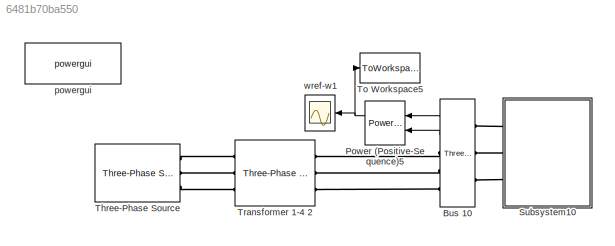
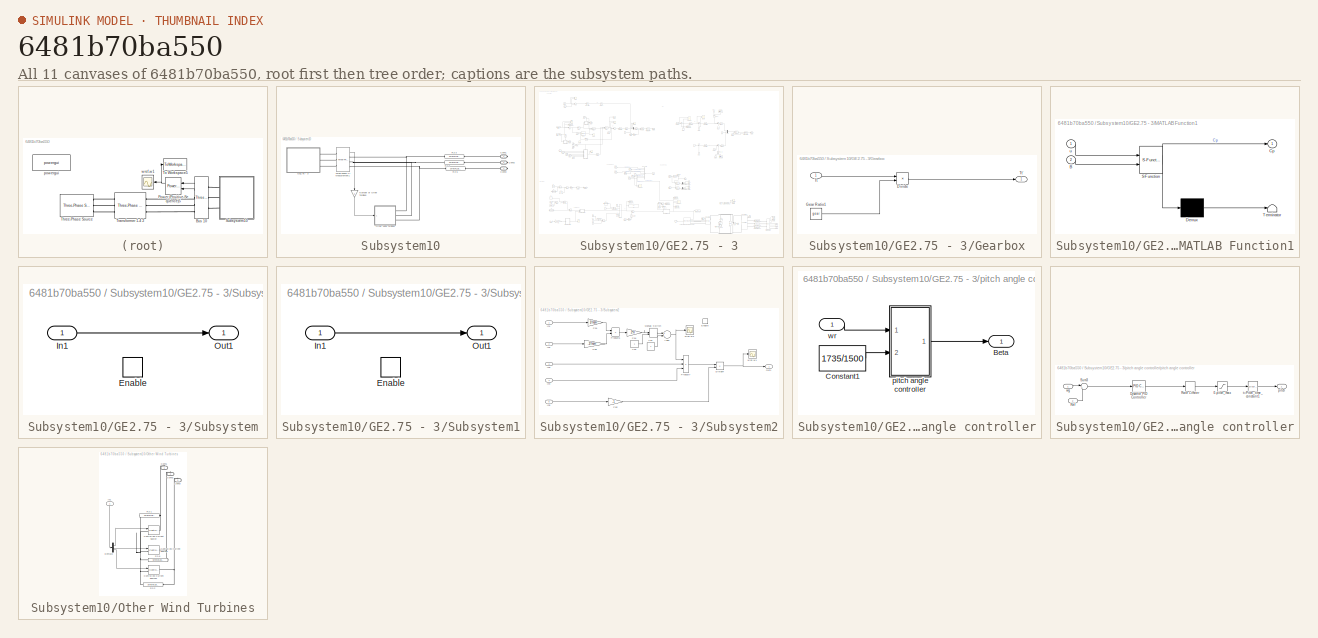
[diagram: thumbnail index - all 11 canvases of the model, root first then tree order]
MODEL slx_6481b70ba550
KIND model
CONFIG AbsTol = auto
CONFIG FixedStep = auto
CONFIG MaxStep = auto
CONFIG MinStep = auto
CONFIG RelTol = 1e-3
CONFIG SampleTimeConstraint = Unconstrained
CONFIG Solver = VariableStepAuto
CONFIG SolverMode = Auto
CONFIG SolverName = VariableStepAuto
CONFIG StartTime = 0.0
CONFIG StopTime = 60
BLOCK [Reference] Bus 10  REF=powerlib/Measurements/Three-Phase
V-I Measurement
  Ports = [0, 2, 0, 0, 0, 3, 3]
  SourceBlock = powerlib/Measurements/Three-Phase\nV-I Measurement
  SourceType = Three-Phase VI Measurement
BLOCK [Reference] Power (Positive-Sequence)5  REF=powerlib_meascontrol/Measurements/Power
(Positive-Sequence)
  Ports = [2, 2]
  SourceBlock = powerlib_meascontrol/Measurements/Power\n(Positive-Sequence)
  SourceType = Power (Positive-Sequence)
BLOCK [SubSystem] Subsystem10
  Ports = [0, 0, 0, 0, 0, 0, 3]
  RequestExecContextInheritance = off
  Variant = off
BLOCK [PMIOPort] Subsystem10/Conn1
  Port = 1
  Side = Right
BLOCK [PMIOPort] Subsystem10/Conn2
  Port = 2
  Side = Right
BLOCK [PMIOPort] Subsystem10/Conn3
  Port = 3
  Side = Right
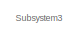
[diagram: Subsystem10/GE2.75 - 3 - part 1/11, top left region]
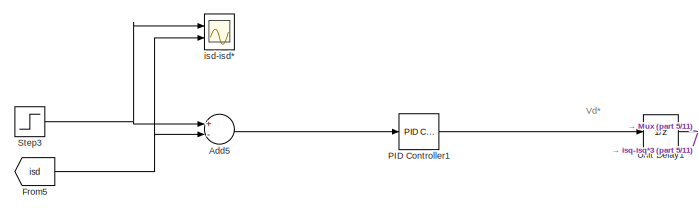
[diagram: Subsystem10/GE2.75 - 3 - part 2/11, top left region]
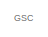
[diagram: Subsystem10/GE2.75 - 3 - part 3/11, top center region]
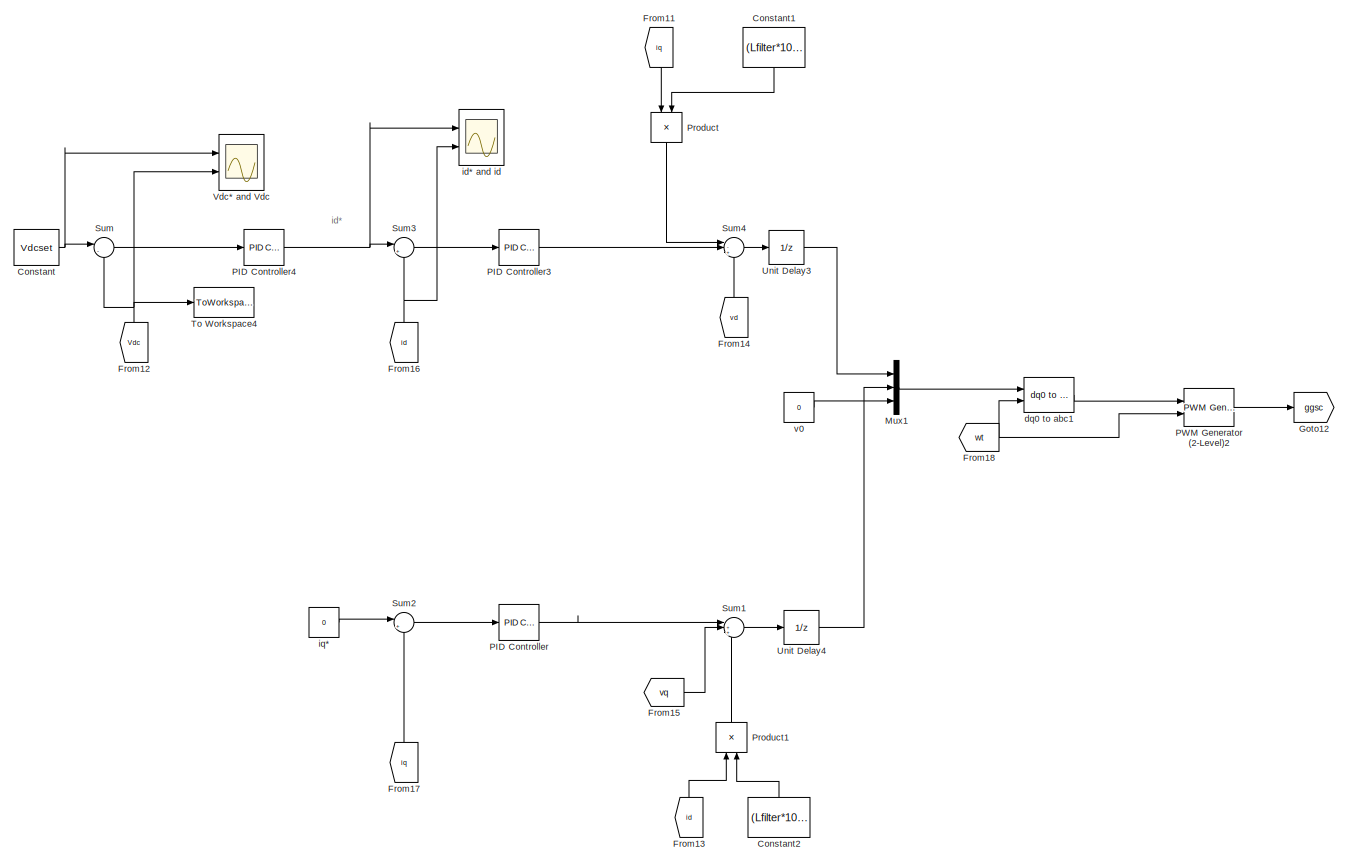
[diagram: Subsystem10/GE2.75 - 3 - part 4/11, top right region]
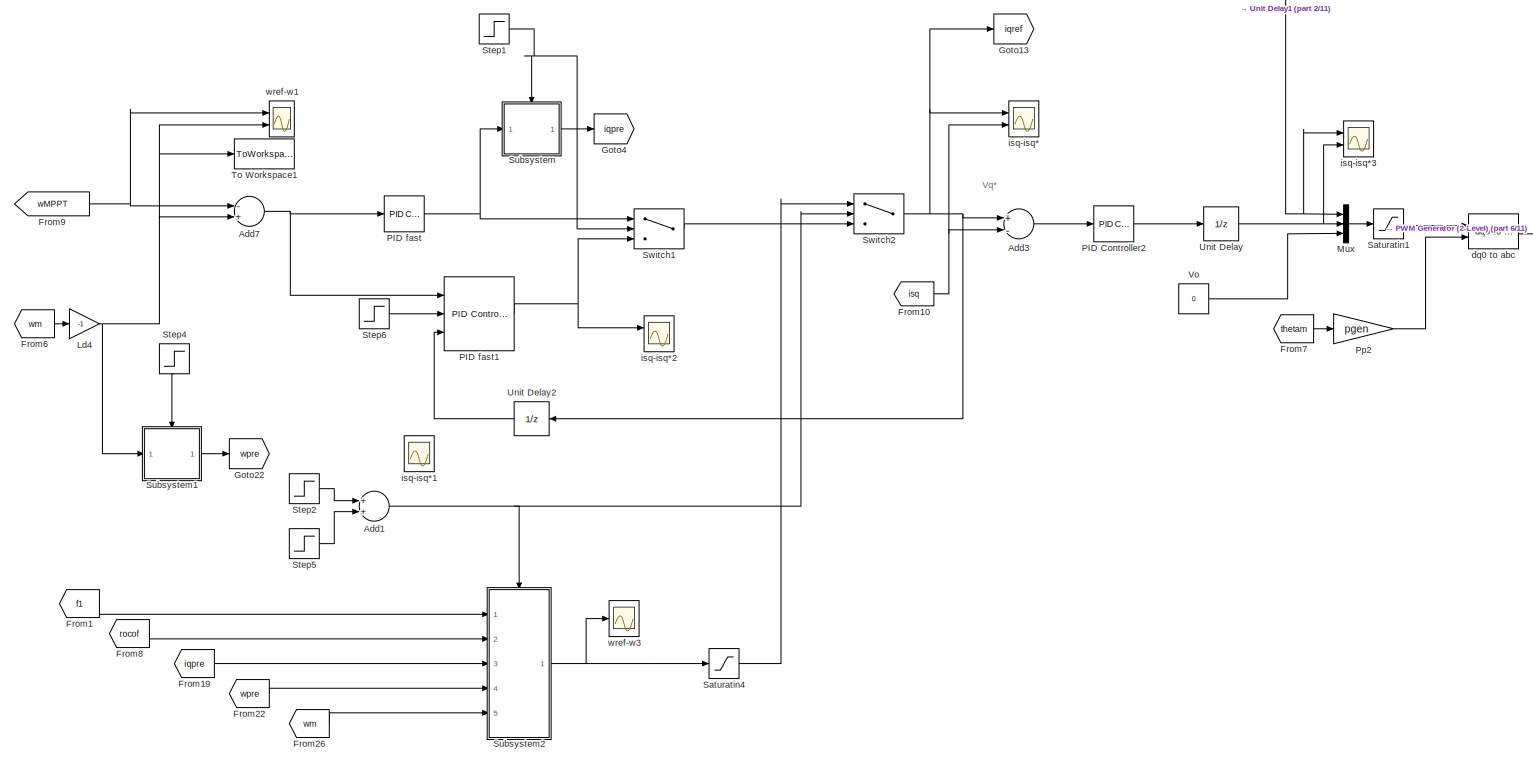
[diagram: Subsystem10/GE2.75 - 3 - part 5/11, top left region]
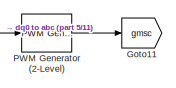
[diagram: Subsystem10/GE2.75 - 3 - part 6/11, top center region]
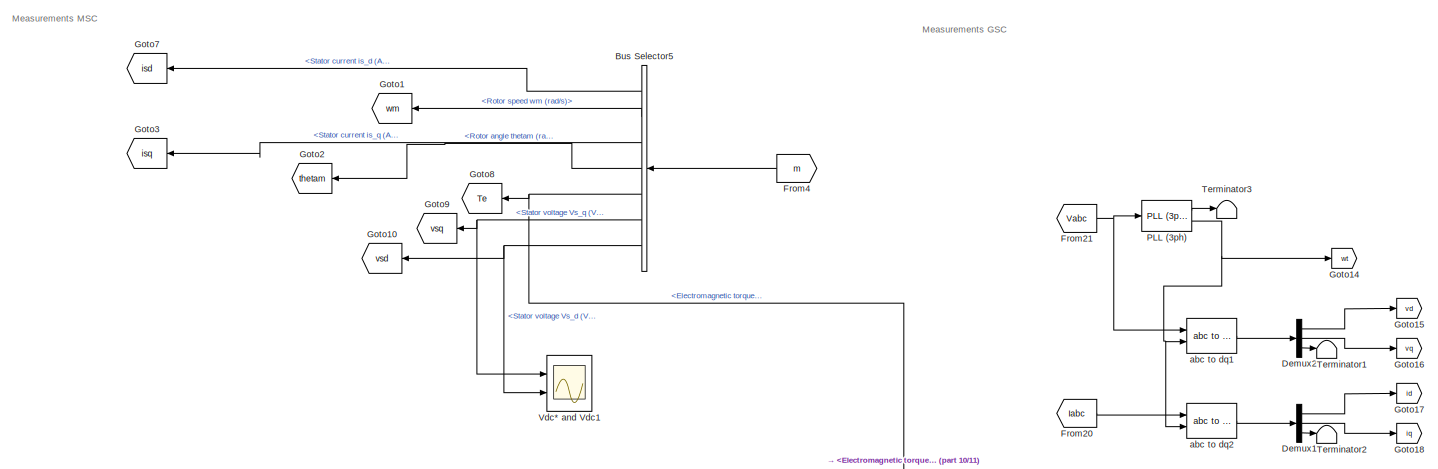
[diagram: Subsystem10/GE2.75 - 3 - part 7/11, central region]
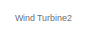
[diagram: Subsystem10/GE2.75 - 3 - part 8/11, middle left region]
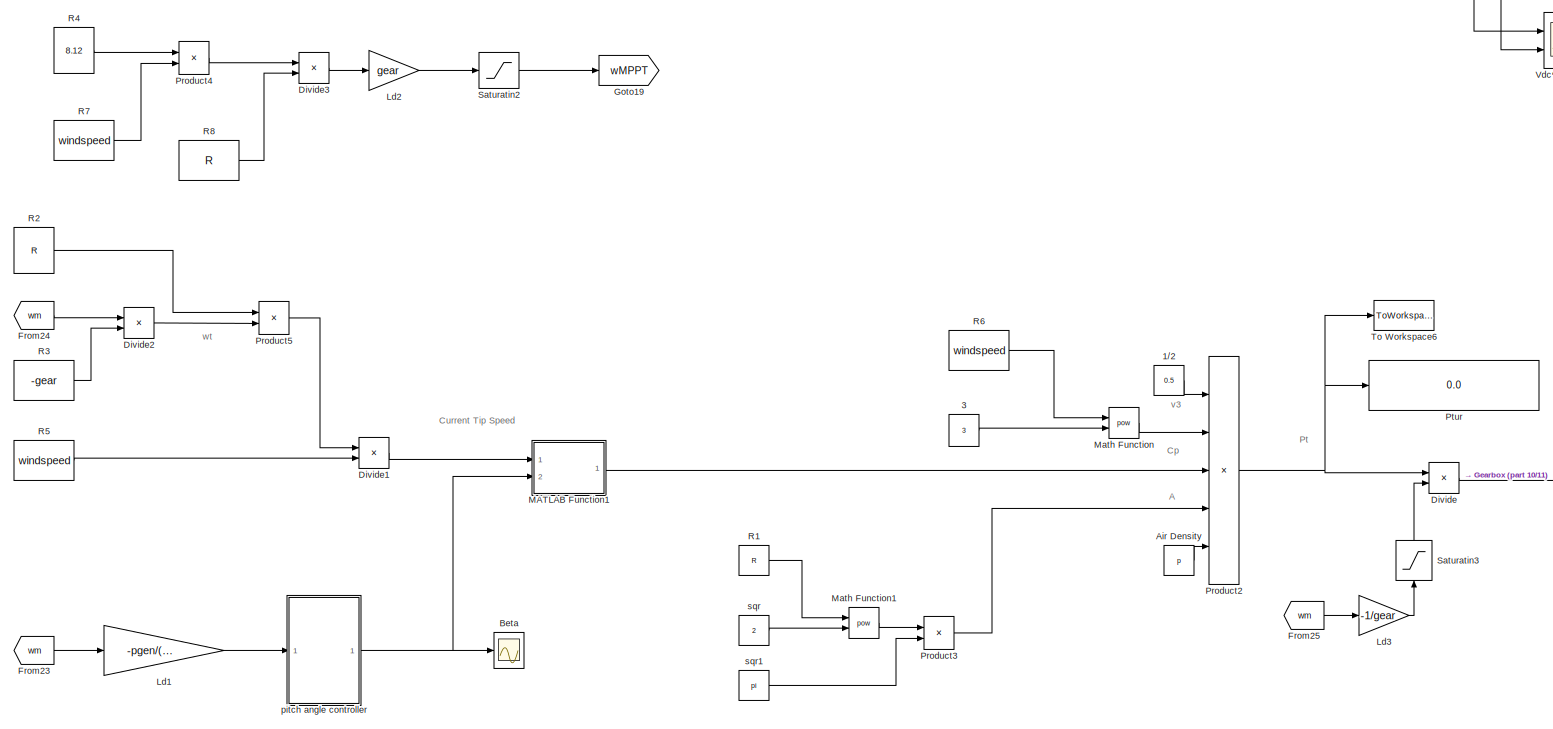
[diagram: Subsystem10/GE2.75 - 3 - part 9/11, bottom left region]
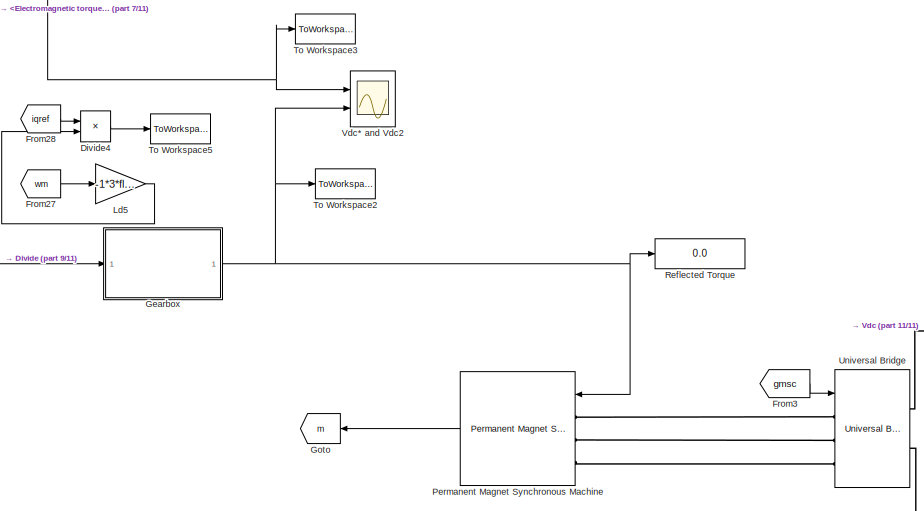
[diagram: Subsystem10/GE2.75 - 3 - part 10/11, bottom center region]
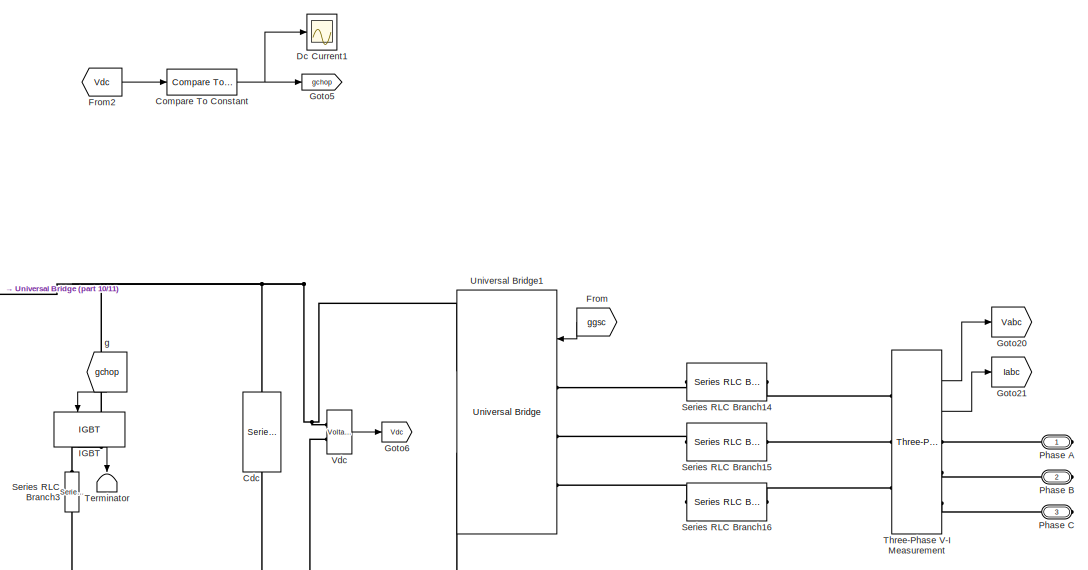
[diagram: Subsystem10/GE2.75 - 3 - part 11/11, bottom right region]
BLOCK [SubSystem] Subsystem10/GE2.75 - 3
  Ports = [0, 0, 0, 0, 0, 0, 3]
  RequestExecContextInheritance = off
  Variant = off
BLOCK [Constant] Subsystem10/GE2.75 - 3/1//2
  Value = 0.5
BLOCK [Constant] Subsystem10/GE2.75 - 3/3
  Value = 3
BLOCK [Sum] Subsystem10/GE2.75 - 3/Add1
  InputSameDT = off
  OutDataTypeStr = Inherit: Inherit via internal rule
  Ports = [2, 1]
  SaturateOnIntegerOverflow = off
BLOCK [Sum] Subsystem10/GE2.75 - 3/Add3
  InputSameDT = off
  Inputs = +-
  OutDataTypeStr = Inherit: Inherit via internal rule
  Ports = [2, 1]
  SaturateOnIntegerOverflow = off
BLOCK [Sum] Subsystem10/GE2.75 - 3/Add5
  InputSameDT = off
  Inputs = +-
  OutDataTypeStr = Inherit: Inherit via internal rule
  Ports = [2, 1]
  SaturateOnIntegerOverflow = off
BLOCK [Sum] Subsystem10/GE2.75 - 3/Add7
  InputSameDT = off
  Inputs = -+
  OutDataTypeStr = Inherit: Inherit via internal rule
  Ports = [2, 1]
  SaturateOnIntegerOverflow = off
BLOCK [Constant] Subsystem10/GE2.75 - 3/Air Density
  Value = p
BLOCK [Scope] Subsystem10/GE2.75 - 3/Beta
  Ports = [1]
  ScopeSpecificationString = Simulink.scopes.TimeScopeBlockCfg('CurrentConfiguration', extmgr.ConfigurationSet(extmgr.Configuration('Core','General UI',true),extmgr.Configuration('Core','Source UI',true),extmgr.Configuration('Sources','WiredSimulink',true,'DataLoggingVariableName','ScopeData1'),extmgr.Configuration('Visuals','Time Domain',true,'SerializedDisplays',{struct('MinYLimReal','-1.00000','MaxYLimReal','1.00000','YLab...<+1456ch>
BLOCK [BusSelector] Subsystem10/GE2.75 - 3/Bus Selector5
  OutputSignals = Stator current is_d (A),Rotor speed wm (rad/s),Stator current is_q (A),Rotor angle thetam (rad),Electromagnetic torque Te (N*m),Stator voltage Vs_q (V),Stator voltage Vs_d (V)
  Ports = [1, 7]
BLOCK [Reference] Subsystem10/GE2.75 - 3/Cdc  REF=powerlib/Elements/Series RLC Branch
  Ports = [0, 0, 0, 0, 0, 1, 1]
  SourceBlock = powerlib/Elements/Series RLC Branch
  SourceType = Series RLC Branch
BLOCK [Reference] Subsystem10/GE2.75 - 3/Compare To Constant  REF=simulink/Logic and Bit
Operations/Compare
To Constant
  Ports = [1, 1]
  SourceBlock = simulink/Logic and Bit\nOperations/Compare\nTo Constant
  SourceType = Compare To Constant
BLOCK [Constant] Subsystem10/GE2.75 - 3/Constant
  Value = Vdcset
BLOCK [Constant] Subsystem10/GE2.75 - 3/Constant1
  Value = (Lfilter*100*pi*2300)/690
BLOCK [Constant] Subsystem10/GE2.75 - 3/Constant2
  Value = (Lfilter*100*pi*2300)/690
BLOCK [Scope] Subsystem10/GE2.75 - 3/Dc Current1
  Ports = [1]
  ScopeSpecificationString = Simulink.scopes.TimeScopeBlockCfg('CurrentConfiguration', extmgr.ConfigurationSet(extmgr.Configuration('Core','General UI',true),extmgr.Configuration('Core','Source UI',true),extmgr.Configuration('Sources','WiredSimulink',true,'DataLoggingVariableName','ScopeData1'),extmgr.Configuration('Visuals','Time Domain',true,'SerializedDisplays',{struct('MinYLimReal','-1.00000','MaxYLimReal','1.00000','YLab...<+1422ch>
BLOCK [Demux] Subsystem10/GE2.75 - 3/Demux1
  DisplayOption = bar
  Outputs = 3
  Ports = [1, 3]
BLOCK [Demux] Subsystem10/GE2.75 - 3/Demux2
  DisplayOption = bar
  Outputs = 3
  Ports = [1, 3]
BLOCK [Product] Subsystem10/GE2.75 - 3/Divide
  InputSameDT = off
  Inputs = */
  OutDataTypeStr = Inherit: Inherit via internal rule
  Ports = [2, 1]
  RndMeth = Floor
  SaturateOnIntegerOverflow = off
BLOCK [Product] Subsystem10/GE2.75 - 3/Divide1
  InputSameDT = off
  Inputs = */
  OutDataTypeStr = Inherit: Inherit via internal rule
  Ports = [2, 1]
  RndMeth = Floor
  SaturateOnIntegerOverflow = off
BLOCK [Product] Subsystem10/GE2.75 - 3/Divide2
  InputSameDT = off
  Inputs = */
  OutDataTypeStr = Inherit: Inherit via internal rule
  Ports = [2, 1]
  RndMeth = Floor
  SaturateOnIntegerOverflow = off
BLOCK [Product] Subsystem10/GE2.75 - 3/Divide3
  InputSameDT = off
  Inputs = */
  OutDataTypeStr = Inherit: Inherit via internal rule
  Ports = [2, 1]
  RndMeth = Floor
  SaturateOnIntegerOverflow = off
BLOCK [Product] Subsystem10/GE2.75 - 3/Divide4
  InputSameDT = off
  Inputs = **
  OutDataTypeStr = Inherit: Inherit via internal rule
  Ports = [2, 1]
  RndMeth = Floor
  SaturateOnIntegerOverflow = off
BLOCK [From] Subsystem10/GE2.75 - 3/From
  GotoTag = ggsc
BLOCK [From] Subsystem10/GE2.75 - 3/From1
  GotoTag = f1
BLOCK [From] Subsystem10/GE2.75 - 3/From10
  GotoTag = isq
BLOCK [From] Subsystem10/GE2.75 - 3/From11
  GotoTag = iq
BLOCK [From] Subsystem10/GE2.75 - 3/From12
  GotoTag = Vdc
BLOCK [From] Subsystem10/GE2.75 - 3/From13
  GotoTag = id
BLOCK [From] Subsystem10/GE2.75 - 3/From14
  GotoTag = vd
BLOCK [From] Subsystem10/GE2.75 - 3/From15
  GotoTag = vq
BLOCK [From] Subsystem10/GE2.75 - 3/From16
  GotoTag = id
BLOCK [From] Subsystem10/GE2.75 - 3/From17
  GotoTag = iq
BLOCK [From] Subsystem10/GE2.75 - 3/From18
  GotoTag = wt
BLOCK [From] Subsystem10/GE2.75 - 3/From19
  GotoTag = iqpre
BLOCK [From] Subsystem10/GE2.75 - 3/From2
  GotoTag = Vdc
BLOCK [From] Subsystem10/GE2.75 - 3/From20
  GotoTag = Iabc
BLOCK [From] Subsystem10/GE2.75 - 3/From21
  GotoTag = Vabc
BLOCK [From] Subsystem10/GE2.75 - 3/From22
  GotoTag = wpre
BLOCK [From] Subsystem10/GE2.75 - 3/From23
  GotoTag = wm
BLOCK [From] Subsystem10/GE2.75 - 3/From24
  GotoTag = wm
BLOCK [From] Subsystem10/GE2.75 - 3/From25
  GotoTag = wm
BLOCK [From] Subsystem10/GE2.75 - 3/From26
  GotoTag = wm
BLOCK [From] Subsystem10/GE2.75 - 3/From27
  GotoTag = wm
BLOCK [From] Subsystem10/GE2.75 - 3/From28
  GotoTag = iqref
BLOCK [From] Subsystem10/GE2.75 - 3/From3
  GotoTag = gmsc
BLOCK [From] Subsystem10/GE2.75 - 3/From4
  GotoTag = m
BLOCK [From] Subsystem10/GE2.75 - 3/From5
  GotoTag = isd
BLOCK [From] Subsystem10/GE2.75 - 3/From6
  GotoTag = wm
BLOCK [From] Subsystem10/GE2.75 - 3/From7
  GotoTag = thetam
BLOCK [From] Subsystem10/GE2.75 - 3/From8
  GotoTag = rocof
BLOCK [From] Subsystem10/GE2.75 - 3/From9
  GotoTag = wMPPT
BLOCK [SubSystem] Subsystem10/GE2.75 - 3/Gearbox
  Ports = [1, 1]
  RequestExecContextInheritance = off
  Variant = off
BLOCK [Product] Subsystem10/GE2.75 - 3/Gearbox/Divide
  InputSameDT = off
  Inputs = */
  OutDataTypeStr = Inherit: Inherit via internal rule
  Ports = [2, 1]
  RndMeth = Floor
  SaturateOnIntegerOverflow = off
BLOCK [Constant] Subsystem10/GE2.75 - 3/Gearbox/Gear Ratio1
  Value = gear
BLOCK [Inport] Subsystem10/GE2.75 - 3/Gearbox/Tt
  IconDisplay = Port number
BLOCK [Outport] Subsystem10/GE2.75 - 3/Gearbox/Tt'
  IconDisplay = Port number
BLOCK [Goto] Subsystem10/GE2.75 - 3/Goto
  GotoTag = m
BLOCK [Goto] Subsystem10/GE2.75 - 3/Goto1
  GotoTag = wm
BLOCK [Goto] Subsystem10/GE2.75 - 3/Goto10
  GotoTag = vsd
BLOCK [Goto] Subsystem10/GE2.75 - 3/Goto11
  GotoTag = gmsc
BLOCK [Goto] Subsystem10/GE2.75 - 3/Goto12
  GotoTag = ggsc
BLOCK [Goto] Subsystem10/GE2.75 - 3/Goto13
  GotoTag = iqref
BLOCK [Goto] Subsystem10/GE2.75 - 3/Goto14
  GotoTag = wt
BLOCK [Goto] Subsystem10/GE2.75 - 3/Goto15
  GotoTag = vd
BLOCK [Goto] Subsystem10/GE2.75 - 3/Goto16
  GotoTag = vq
BLOCK [Goto] Subsystem10/GE2.75 - 3/Goto17
  GotoTag = id
BLOCK [Goto] Subsystem10/GE2.75 - 3/Goto18
  GotoTag = iq
BLOCK [Goto] Subsystem10/GE2.75 - 3/Goto19
  GotoTag = wMPPT
BLOCK [Goto] Subsystem10/GE2.75 - 3/Goto2
  GotoTag = thetam
BLOCK [Goto] Subsystem10/GE2.75 - 3/Goto20
  GotoTag = Vabc
BLOCK [Goto] Subsystem10/GE2.75 - 3/Goto21
  GotoTag = Iabc
BLOCK [Goto] Subsystem10/GE2.75 - 3/Goto22
  GotoTag = wpre
BLOCK [Goto] Subsystem10/GE2.75 - 3/Goto3
  GotoTag = isq
BLOCK [Goto] Subsystem10/GE2.75 - 3/Goto4
  GotoTag = iqpre
BLOCK [Goto] Subsystem10/GE2.75 - 3/Goto5
  GotoTag = gchop
BLOCK [Goto] Subsystem10/GE2.75 - 3/Goto6
  GotoTag = Vdc
BLOCK [Goto] Subsystem10/GE2.75 - 3/Goto7
  GotoTag = isd
BLOCK [Goto] Subsystem10/GE2.75 - 3/Goto8
  GotoTag = Te
BLOCK [Goto] Subsystem10/GE2.75 - 3/Goto9
  GotoTag = vsq
BLOCK [Reference] Subsystem10/GE2.75 - 3/IGBT  REF=powerlib/Power
Electronics/IGBT
  Ports = [1, 1, 0, 0, 0, 1, 1]
  SourceBlock = powerlib/Power\nElectronics/IGBT
  SourceType = IGBT
BLOCK [Gain] Subsystem10/GE2.75 - 3/Ld1
  Gain = -pgen/(2*fnom*pi)
  OutDataTypeStr = Inherit: Inherit via internal rule
  ParamDataTypeStr = Inherit: Inherit via internal rule
  SaturateOnIntegerOverflow = off
BLOCK [Gain] Subsystem10/GE2.75 - 3/Ld2
  Gain = gear
  OutDataTypeStr = Inherit: Inherit via internal rule
  ParamDataTypeStr = Inherit: Inherit via internal rule
  SaturateOnIntegerOverflow = off
BLOCK [Gain] Subsystem10/GE2.75 - 3/Ld3
  Gain = -1/gear
  OutDataTypeStr = Inherit: Inherit via internal rule
  ParamDataTypeStr = Inherit: Inherit via internal rule
  SaturateOnIntegerOverflow = off
BLOCK [Gain] Subsystem10/GE2.75 - 3/Ld4
  Gain = -1
  OutDataTypeStr = Inherit: Inherit via internal rule
  ParamDataTypeStr = Inherit: Inherit via internal rule
  SaturateOnIntegerOverflow = off
BLOCK [Gain] Subsystem10/GE2.75 - 3/Ld5
  Gain = -1*3*fluxlinkage
  OutDataTypeStr = Inherit: Inherit via internal rule
  ParamDataTypeStr = Inherit: Inherit via internal rule
  SaturateOnIntegerOverflow = off
BLOCK [SubSystem] Subsystem10/GE2.75 - 3/MATLAB Function1
  ErrorFcn = Stateflow.Translate.translate
  PermitHierarchicalResolution = ExplicitOnly
  Ports = [2, 1]
  RequestExecContextInheritance = off
  SFBlockType = MATLAB Function
  TreatAsAtomicUnit = on
  Variant = off
BLOCK [Demux] Subsystem10/GE2.75 - 3/MATLAB Function1/ Demux 
  Outputs = 1
  Ports = [1, 1]
BLOCK [S-Function] Subsystem10/GE2.75 - 3/MATLAB Function1/ SFunction 
  EnableBusSupport = on
  FunctionName = sf_sfun
  PortCounts = [2 2]
  Ports = [2, 2]
  SFunctionDeploymentMode = off
  Tag = Stateflow S-Function Case_0_wind_farm_low_wind 3
BLOCK [Terminator] Subsystem10/GE2.75 - 3/MATLAB Function1/ Terminator 
BLOCK [Inport] Subsystem10/GE2.75 - 3/MATLAB Function1/B
  IconDisplay = Port number
  Port = 2
BLOCK [Outport] Subsystem10/GE2.75 - 3/MATLAB Function1/Cp
  IconDisplay = Port number
BLOCK [Inport] Subsystem10/GE2.75 - 3/MATLAB Function1/u
  IconDisplay = Port number
BLOCK [Math] Subsystem10/GE2.75 - 3/Math Function
  Operator = pow
  Ports = [2, 1]
BLOCK [Math] Subsystem10/GE2.75 - 3/Math Function1
  Operator = pow
  Ports = [2, 1]
BLOCK [Mux] Subsystem10/GE2.75 - 3/Mux
  DisplayOption = bar
  Inputs = 3
  Ports = [3, 1]
BLOCK [Mux] Subsystem10/GE2.75 - 3/Mux1
  DisplayOption = bar
  Inputs = 3
  Ports = [3, 1]
BLOCK [Reference] Subsystem10/GE2.75 - 3/PID Controller  REF=simulink/Continuous/PID Controller
  Ports = [1, 1]
  SourceBlock = simulink/Continuous/PID Controller
  SourceType = PID 1dof
BLOCK [Reference] Subsystem10/GE2.75 - 3/PID Controller1  REF=simulink/Continuous/PID Controller
  Ports = [1, 1]
  SourceBlock = simulink/Continuous/PID Controller
  SourceType = PID 1dof
BLOCK [Reference] Subsystem10/GE2.75 - 3/PID Controller2  REF=simulink/Continuous/PID Controller
  Ports = [1, 1]
  SourceBlock = simulink/Continuous/PID Controller
  SourceType = PID 1dof
BLOCK [Reference] Subsystem10/GE2.75 - 3/PID Controller3  REF=simulink/Continuous/PID Controller
  Ports = [1, 1]
  SourceBlock = simulink/Continuous/PID Controller
  SourceType = PID 1dof
BLOCK [Reference] Subsystem10/GE2.75 - 3/PID Controller4  REF=simulink/Continuous/PID Controller
  Ports = [1, 1]
  SourceBlock = simulink/Continuous/PID Controller
  SourceType = PID 1dof
BLOCK [Reference] Subsystem10/GE2.75 - 3/PID fast  REF=simulink/Continuous/PID Controller
  Ports = [1, 1]
  SourceBlock = simulink/Continuous/PID Controller
  SourceType = PID 1dof
BLOCK [Reference] Subsystem10/GE2.75 - 3/PID fast1  REF=simulink/Continuous/PID Controller
  Ports = [3, 1]
  SourceBlock = simulink/Continuous/PID Controller
  SourceType = PID 1dof
BLOCK [Reference] Subsystem10/GE2.75 - 3/PLL (3ph)  REF=powerlib_meascontrol/PLL/PLL
(3ph)
  Ports = [1, 2]
  SourceBlock = powerlib_meascontrol/PLL/PLL\n(3ph)
  SourceType = PLL (3ph)
BLOCK [Reference] Subsystem10/GE2.75 - 3/PWM Generator (2-Level)  REF=powerlib_meascontrol/Pulse & Signal
Generators/PWM Generator
(2-Level)
  Ports = [1, 1]
  SourceBlock = powerlib_meascontrol/Pulse & Signal\nGenerators/PWM Generator\n(2-Level)
  SourceType = PWM Generator (2-Level)
BLOCK [Reference] Subsystem10/GE2.75 - 3/PWM Generator (2-Level)2  REF=powerlib_meascontrol/Pulse & Signal
Generators/PWM Generator
(2-Level)
  Ports = [2, 1]
  SourceBlock = powerlib_meascontrol/Pulse & Signal\nGenerators/PWM Generator\n(2-Level)
  SourceType = PWM Generator (2-Level)
BLOCK [Reference] Subsystem10/GE2.75 - 3/Permanent Magnet Synchronous Machine  REF=powerlib/Machines/Permanent Magnet
Synchronous Machine
  Ports = [1, 1, 0, 0, 0, 3]
  SourceBlock = powerlib/Machines/Permanent Magnet\nSynchronous Machine
  SourceType = Permanent Magnet Synchronous Machine
BLOCK [PMIOPort] Subsystem10/GE2.75 - 3/Phase A
  Port = 1
  Side = Right
BLOCK [PMIOPort] Subsystem10/GE2.75 - 3/Phase B
  Port = 2
  Side = Right
BLOCK [PMIOPort] Subsystem10/GE2.75 - 3/Phase C
  Port = 3
  Side = Right
BLOCK [Gain] Subsystem10/GE2.75 - 3/Pp2
  Gain = pgen
  OutDataTypeStr = Inherit: Inherit via internal rule
  ParamDataTypeStr = Inherit: Inherit via internal rule
  SaturateOnIntegerOverflow = off
BLOCK [Product] Subsystem10/GE2.75 - 3/Product
  InputSameDT = off
  OutDataTypeStr = Inherit: Inherit via internal rule
  Ports = [2, 1]
  RndMeth = Floor
  SaturateOnIntegerOverflow = off
BLOCK [Product] Subsystem10/GE2.75 - 3/Product1
  InputSameDT = off
  OutDataTypeStr = Inherit: Inherit via internal rule
  Ports = [2, 1]
  RndMeth = Floor
  SaturateOnIntegerOverflow = off
BLOCK [Product] Subsystem10/GE2.75 - 3/Product2
  InputSameDT = off
  Inputs = 5
  OutDataTypeStr = Inherit: Inherit via internal rule
  Ports = [5, 1]
  RndMeth = Floor
  SaturateOnIntegerOverflow = off
BLOCK [Product] Subsystem10/GE2.75 - 3/Product3
  InputSameDT = off
  OutDataTypeStr = Inherit: Inherit via internal rule
  Ports = [2, 1]
  RndMeth = Floor
  SaturateOnIntegerOverflow = off
BLOCK [Product] Subsystem10/GE2.75 - 3/Product4
  InputSameDT = off
  OutDataTypeStr = Inherit: Inherit via internal rule
  Ports = [2, 1]
  RndMeth = Floor
  SaturateOnIntegerOverflow = off
BLOCK [Product] Subsystem10/GE2.75 - 3/Product5
  InputSameDT = off
  OutDataTypeStr = Inherit: Inherit via internal rule
  Ports = [2, 1]
  RndMeth = Floor
  SaturateOnIntegerOverflow = off
BLOCK [Display] Subsystem10/GE2.75 - 3/Ptur
  Decimation = 1
  Ports = [1]
BLOCK [Constant] Subsystem10/GE2.75 - 3/R1
  Value = R
BLOCK [Constant] Subsystem10/GE2.75 - 3/R2
  Value = R
BLOCK [Constant] Subsystem10/GE2.75 - 3/R3
  Value = -gear
BLOCK [Constant] Subsystem10/GE2.75 - 3/R4
  Value = 8.12
BLOCK [Constant] Subsystem10/GE2.75 - 3/R5
  Value = windspeed
BLOCK [Constant] Subsystem10/GE2.75 - 3/R6
  Value = windspeed
BLOCK [Constant] Subsystem10/GE2.75 - 3/R7
  Value = windspeed
BLOCK [Constant] Subsystem10/GE2.75 - 3/R8
  Value = R
BLOCK [Display] Subsystem10/GE2.75 - 3/Reflected Torque
  Decimation = 1
  Ports = [1]
BLOCK [Saturate] Subsystem10/GE2.75 - 3/Saturatin1
  InputPortMap = u0
  LowerLimit = -2000
  Ports = [1, 1]
  UpperLimit = 2000
BLOCK [Saturate] Subsystem10/GE2.75 - 3/Saturatin2
  InputPortMap = u0
  LowerLimit = 2*pi*(550/60)
  Ports = [1, 1]
  UpperLimit = wmax
BLOCK [Saturate] Subsystem10/GE2.75 - 3/Saturatin3
  InputPortMap = u0
  LowerLimit = 1e-8
  Ports = [1, 1]
  UpperLimit = inf
BLOCK [Saturate] Subsystem10/GE2.75 - 3/Saturatin4
  InputPortMap = u0
  LowerLimit = 1e-8
  Ports = [1, 1]
  UpperLimit = (2*Srated)/(3*wmax*pgen*fluxlinkage)
BLOCK [Reference] Subsystem10/GE2.75 - 3/Series RLC Branch14  REF=powerlib/Elements/Series RLC Branch
  Ports = [0, 0, 0, 0, 0, 1, 1]
  SourceBlock = powerlib/Elements/Series RLC Branch
  SourceType = Series RLC Branch
BLOCK [Reference] Subsystem10/GE2.75 - 3/Series RLC Branch15  REF=powerlib/Elements/Series RLC Branch
  Ports = [0, 0, 0, 0, 0, 1, 1]
  SourceBlock = powerlib/Elements/Series RLC Branch
  SourceType = Series RLC Branch
BLOCK [Reference] Subsystem10/GE2.75 - 3/Series RLC Branch16  REF=powerlib/Elements/Series RLC Branch
  Ports = [0, 0, 0, 0, 0, 1, 1]
  SourceBlock = powerlib/Elements/Series RLC Branch
  SourceType = Series RLC Branch
BLOCK [Reference] Subsystem10/GE2.75 - 3/Series RLC Branch3  REF=powerlib/Elements/Series RLC Branch
  Ports = [0, 0, 0, 0, 0, 1, 1]
  SourceBlock = powerlib/Elements/Series RLC Branch
  SourceType = Series RLC Branch
BLOCK [Step] Subsystem10/GE2.75 - 3/Step1
  After = 0
  Before = 1
  SampleTime = Ts
  Time = insup
BLOCK [Step] Subsystem10/GE2.75 - 3/Step2
  SampleTime = Ts
  Time = insup
BLOCK [Step] Subsystem10/GE2.75 - 3/Step3
  After = 0
  SampleTime = Ts
  Time = 0.001
BLOCK [Step] Subsystem10/GE2.75 - 3/Step4
  After = 0
  Before = 1
  SampleTime = Ts
  Time = insup
BLOCK [Step] Subsystem10/GE2.75 - 3/Step5
  After = -1
  SampleTime = Ts
  Time = insup+supduration
BLOCK [Step] Subsystem10/GE2.75 - 3/Step6
  SampleTime = Ts
  Time = insup+supduration
BLOCK [SubSystem] Subsystem10/GE2.75 - 3/Subsystem
  Ports = [1, 1, 1]
  RequestExecContextInheritance = off
  Variant = off
BLOCK [EnablePort] Subsystem10/GE2.75 - 3/Subsystem/Enable
  Ports = []
BLOCK [Inport] Subsystem10/GE2.75 - 3/Subsystem/In1
  IconDisplay = Port number
BLOCK [Outport] Subsystem10/GE2.75 - 3/Subsystem/Out1
  IconDisplay = Port number
BLOCK [SubSystem] Subsystem10/GE2.75 - 3/Subsystem1
  Ports = [1, 1, 1]
  RequestExecContextInheritance = off
  Variant = off
BLOCK [EnablePort] Subsystem10/GE2.75 - 3/Subsystem1/Enable
  Ports = []
BLOCK [Inport] Subsystem10/GE2.75 - 3/Subsystem1/In1
  IconDisplay = Port number
BLOCK [Outport] Subsystem10/GE2.75 - 3/Subsystem1/Out1
  IconDisplay = Port number
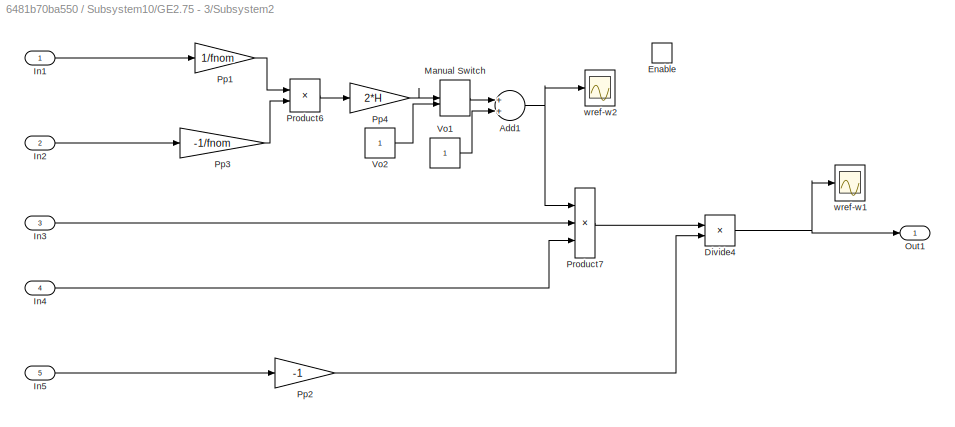
BLOCK [SubSystem] Subsystem10/GE2.75 - 3/Subsystem2
  Ports = [5, 1, 1]
  RequestExecContextInheritance = off
  Variant = off
BLOCK [Sum] Subsystem10/GE2.75 - 3/Subsystem2/Add1
  InputSameDT = off
  OutDataTypeStr = Inherit: Inherit via internal rule
  Ports = [2, 1]
  SaturateOnIntegerOverflow = off
BLOCK [Product] Subsystem10/GE2.75 - 3/Subsystem2/Divide4
  InputSameDT = off
  Inputs = */
  OutDataTypeStr = Inherit: Inherit via internal rule
  Ports = [2, 1]
  RndMeth = Floor
  SaturateOnIntegerOverflow = off
BLOCK [EnablePort] Subsystem10/GE2.75 - 3/Subsystem2/Enable
  Ports = []
BLOCK [Inport] Subsystem10/GE2.75 - 3/Subsystem2/In1
  IconDisplay = Port number
BLOCK [Inport] Subsystem10/GE2.75 - 3/Subsystem2/In2
  IconDisplay = Port number
  Port = 2
BLOCK [Inport] Subsystem10/GE2.75 - 3/Subsystem2/In3
  IconDisplay = Port number
  Port = 3
BLOCK [Inport] Subsystem10/GE2.75 - 3/Subsystem2/In4
  IconDisplay = Port number
  Port = 4
BLOCK [Inport] Subsystem10/GE2.75 - 3/Subsystem2/In5
  IconDisplay = Port number
  Port = 5
BLOCK [ManualSwitch] Subsystem10/GE2.75 - 3/Subsystem2/Manual Switch
  CurrentSetting = 0
BLOCK [Outport] Subsystem10/GE2.75 - 3/Subsystem2/Out1
  IconDisplay = Port number
BLOCK [Gain] Subsystem10/GE2.75 - 3/Subsystem2/Pp1
  Gain = 1/fnom
  OutDataTypeStr = Inherit: Inherit via internal rule
  ParamDataTypeStr = Inherit: Inherit via internal rule
  SaturateOnIntegerOverflow = off
BLOCK [Gain] Subsystem10/GE2.75 - 3/Subsystem2/Pp2
  Gain = -1
  OutDataTypeStr = Inherit: Inherit via internal rule
  ParamDataTypeStr = Inherit: Inherit via internal rule
  SaturateOnIntegerOverflow = off
BLOCK [Gain] Subsystem10/GE2.75 - 3/Subsystem2/Pp3
  Gain = -1/fnom
  OutDataTypeStr = Inherit: Inherit via internal rule
  ParamDataTypeStr = Inherit: Inherit via internal rule
  SaturateOnIntegerOverflow = off
BLOCK [Gain] Subsystem10/GE2.75 - 3/Subsystem2/Pp4
  Gain = 2*H
  OutDataTypeStr = Inherit: Inherit via internal rule
  ParamDataTypeStr = Inherit: Inherit via internal rule
  SaturateOnIntegerOverflow = off
BLOCK [Product] Subsystem10/GE2.75 - 3/Subsystem2/Product6
  InputSameDT = off
  OutDataTypeStr = Inherit: Inherit via internal rule
  Ports = [2, 1]
  RndMeth = Floor
  SaturateOnIntegerOverflow = off
BLOCK [Product] Subsystem10/GE2.75 - 3/Subsystem2/Product7
  InputSameDT = off
  Inputs = 3
  OutDataTypeStr = Inherit: Inherit via internal rule
  Ports = [3, 1]
  RndMeth = Floor
  SaturateOnIntegerOverflow = off
BLOCK [Constant] Subsystem10/GE2.75 - 3/Subsystem2/Vo1
BLOCK [Constant] Subsystem10/GE2.75 - 3/Subsystem2/Vo2
BLOCK [Scope] Subsystem10/GE2.75 - 3/Subsystem2/wref-w1
  Ports = [1]
  ScopeSpecificationString = Simulink.scopes.TimeScopeBlockCfg('CurrentConfiguration', extmgr.ConfigurationSet(extmgr.Configuration('Core','General UI',true),extmgr.Configuration('Core','Source UI',true),extmgr.Configuration('Sources','WiredSimulink',true,'DataLoggingVariableName','ScopeData4'),extmgr.Configuration('Visuals','Time Domain',true,'SerializedDisplays',{struct('MinYLimReal','251.53416','MaxYLimReal','269.24386','Y...<+1452ch>
BLOCK [Scope] Subsystem10/GE2.75 - 3/Subsystem2/wref-w2
  Ports = [1]
  ScopeSpecificationString = Simulink.scopes.TimeScopeBlockCfg('CurrentConfiguration', extmgr.ConfigurationSet(extmgr.Configuration('Core','General UI',true),extmgr.Configuration('Core','Source UI',true),extmgr.Configuration('Sources','WiredSimulink',true,'DataLoggingVariableName','ScopeData3'),extmgr.Configuration('Visuals','Time Domain',true,'SerializedDisplays',{struct('MinYLimReal','0.5','MaxYLimReal','2.5','YLabelReal','...<+1400ch>
BLOCK [Sum] Subsystem10/GE2.75 - 3/Sum
  IconShape = round
  InputSameDT = off
  Inputs = |-+
  OutDataTypeStr = Inherit: Inherit via internal rule
  Ports = [2, 1]
  SaturateOnIntegerOverflow = off
BLOCK [Sum] Subsystem10/GE2.75 - 3/Sum1
  IconShape = round
  InputSameDT = off
  Inputs = |+++
  OutDataTypeStr = Inherit: Inherit via internal rule
  Ports = [3, 1]
  SaturateOnIntegerOverflow = off
BLOCK [Sum] Subsystem10/GE2.75 - 3/Sum2
  IconShape = round
  InputSameDT = off
  Inputs = |+-
  OutDataTypeStr = Inherit: Inherit via internal rule
  Ports = [2, 1]
  SaturateOnIntegerOverflow = off
BLOCK [Sum] Subsystem10/GE2.75 - 3/Sum3
  IconShape = round
  InputSameDT = off
  Inputs = |+-
  OutDataTypeStr = Inherit: Inherit via internal rule
  Ports = [2, 1]
  SaturateOnIntegerOverflow = off
BLOCK [Sum] Subsystem10/GE2.75 - 3/Sum4
  IconShape = round
  InputSameDT = off
  Inputs = |-++
  OutDataTypeStr = Inherit: Inherit via internal rule
  Ports = [3, 1]
  SaturateOnIntegerOverflow = off
BLOCK [Switch] Subsystem10/GE2.75 - 3/Switch1
  Criteria = u2 > Threshold
  InputSameDT = off
  SaturateOnIntegerOverflow = off
  Threshold = 0.5
BLOCK [Switch] Subsystem10/GE2.75 - 3/Switch2
  Criteria = u2 > Threshold
  InputSameDT = off
  SaturateOnIntegerOverflow = off
  Threshold = 0.5
BLOCK [Terminator] Subsystem10/GE2.75 - 3/Terminator
BLOCK [Terminator] Subsystem10/GE2.75 - 3/Terminator1
BLOCK [Terminator] Subsystem10/GE2.75 - 3/Terminator2
BLOCK [Terminator] Subsystem10/GE2.75 - 3/Terminator3
BLOCK [Reference] Subsystem10/GE2.75 - 3/Three-Phase V-I Measurement  REF=powerlib/Measurements/Three-Phase
V-I Measurement
  Ports = [0, 2, 0, 0, 0, 3, 3]
  SourceBlock = powerlib/Measurements/Three-Phase\nV-I Measurement
  SourceType = Three-Phase VI Measurement
BLOCK [ToWorkspace] Subsystem10/GE2.75 - 3/To Workspace1
  FixptAsFi = on
  MaxDataPoints = inf
  Ports = [1]
  SampleTime = -1
  Save2DSignal = 3-D array (concatenate along third dimension)
  SaveFormat = Timeseries
  VariableName = speed
BLOCK [ToWorkspace] Subsystem10/GE2.75 - 3/To Workspace2
  FixptAsFi = on
  MaxDataPoints = inf
  Ports = [1]
  SampleTime = -1
  Save2DSignal = 3-D array (concatenate along third dimension)
  SaveFormat = Timeseries
  VariableName = Tt
BLOCK [ToWorkspace] Subsystem10/GE2.75 - 3/To Workspace3
  FixptAsFi = on
  MaxDataPoints = inf
  Ports = [1]
  SampleTime = -1
  Save2DSignal = 3-D array (concatenate along third dimension)
  SaveFormat = Timeseries
  VariableName = Te
BLOCK [ToWorkspace] Subsystem10/GE2.75 - 3/To Workspace4
  FixptAsFi = on
  MaxDataPoints = inf
  Ports = [1]
  SampleTime = -1
  Save2DSignal = 3-D array (concatenate along third dimension)
  SaveFormat = Timeseries
  VariableName = vdc
BLOCK [ToWorkspace] Subsystem10/GE2.75 - 3/To Workspace5
  FixptAsFi = on
  MaxDataPoints = inf
  Ports = [1]
  SampleTime = -1
  Save2DSignal = 3-D array (concatenate along third dimension)
  SaveFormat = Timeseries
  VariableName = power
BLOCK [ToWorkspace] Subsystem10/GE2.75 - 3/To Workspace6
  FixptAsFi = on
  MaxDataPoints = inf
  Ports = [1]
  SampleTime = -1
  Save2DSignal = 3-D array (concatenate along third dimension)
  SaveFormat = Timeseries
  VariableName = powertur
BLOCK [UnitDelay] Subsystem10/GE2.75 - 3/Unit Delay
  InputProcessing = Elements as channels (sample based)
  SampleTime = Ts
BLOCK [UnitDelay] Subsystem10/GE2.75 - 3/Unit Delay1
  InputProcessing = Elements as channels (sample based)
  SampleTime = Ts
BLOCK [UnitDelay] Subsystem10/GE2.75 - 3/Unit Delay2
  InputProcessing = Elements as channels (sample based)
  SampleTime = Ts
BLOCK [UnitDelay] Subsystem10/GE2.75 - 3/Unit Delay3
  InputProcessing = Elements as channels (sample based)
  SampleTime = Ts
BLOCK [UnitDelay] Subsystem10/GE2.75 - 3/Unit Delay4
  InputProcessing = Elements as channels (sample based)
  SampleTime = Ts
BLOCK [Reference] Subsystem10/GE2.75 - 3/Universal Bridge  REF=powerlib/Power
Electronics/Universal Bridge
  Ports = [1, 0, 0, 0, 0, 3, 2]
  SourceBlock = powerlib/Power\nElectronics/Universal Bridge
  SourceType = Universal Bridge
BLOCK [Reference] Subsystem10/GE2.75 - 3/Universal Bridge1  REF=powerlib/Power
Electronics/Universal Bridge
  Ports = [1, 0, 0, 0, 0, 3, 2]
  SourceBlock = powerlib/Power\nElectronics/Universal Bridge
  SourceType = Universal Bridge
BLOCK [Reference] Subsystem10/GE2.75 - 3/Vdc  REF=powerlib/Measurements/Voltage Measurement
  Ports = [0, 1, 0, 0, 0, 2]
  SourceBlock = powerlib/Measurements/Voltage Measurement
  SourceType = Voltage Measurement
  UserDataPersistent = on
BLOCK [Scope] Subsystem10/GE2.75 - 3/Vdc* and Vdc
  NumInputPorts = 2
  Ports = [2]
  ScopeSpecificationString = Simulink.scopes.TimeScopeBlockCfg('CurrentConfiguration', extmgr.ConfigurationSet(extmgr.Configuration('Core','General UI',true),extmgr.Configuration('Core','Source UI',true),extmgr.Configuration('Sources','WiredSimulink',true,'DataLoggingSaveFormat','Array','DataLoggingDecimation','1','DataLoggingVariableName','ScopeData3'),extmgr.Configuration('Visuals','Time Domain',true,'SerializedDisplays',{s...<+1522ch>
BLOCK [Scope] Subsystem10/GE2.75 - 3/Vdc* and Vdc1
  NumInputPorts = 2
  Ports = [2]
  ScopeSpecificationString = Simulink.scopes.TimeScopeBlockCfg('CurrentConfiguration', extmgr.ConfigurationSet(extmgr.Configuration('Core','General UI',true),extmgr.Configuration('Core','Source UI',true),extmgr.Configuration('Sources','WiredSimulink',true,'DataLoggingVariableName','ScopeData1'),extmgr.Configuration('Visuals','Time Domain',true,'SerializedDisplays',{struct('MinYLimReal','-1010.68719','MaxYLimReal','1009.36173'...<+1478ch>
BLOCK [Scope] Subsystem10/GE2.75 - 3/Vdc* and Vdc2
  NumInputPorts = 2
  Ports = [2]
  ScopeSpecificationString = Simulink.scopes.TimeScopeBlockCfg('CurrentConfiguration', extmgr.ConfigurationSet(extmgr.Configuration('Core','General UI',true),extmgr.Configuration('Core','Source UI',true),extmgr.Configuration('Sources','WiredSimulink',true,'DataLoggingVariableName','ScopeData1','DataLoggingLimitDataPoints',true,'DataLoggingSaveFormat','Array','DataLoggingDecimation','1','DataLoggingDecimateData',true),extmgr.C...<+1621ch>
BLOCK [Constant] Subsystem10/GE2.75 - 3/Vo
  Value = 0
BLOCK [Reference] Subsystem10/GE2.75 - 3/abc to dq1  REF=powerlib_meascontrol/Transformations/abc to dq0
  Ports = [2, 1]
  SourceBlock = powerlib_meascontrol/Transformations/abc to dq0
  SourceType = abc to dq0 Transformation
BLOCK [Reference] Subsystem10/GE2.75 - 3/abc to dq2  REF=powerlib_meascontrol/Transformations/abc to dq0
  Ports = [2, 1]
  SourceBlock = powerlib_meascontrol/Transformations/abc to dq0
  SourceType = abc to dq0 Transformation
BLOCK [Reference] Subsystem10/GE2.75 - 3/dq0 to abc  REF=powerlib_meascontrol/Transformations/dq0 to abc
  Ports = [2, 1]
  SourceBlock = powerlib_meascontrol/Transformations/dq0 to abc
  SourceType = dq0 to abc Transformation
BLOCK [Reference] Subsystem10/GE2.75 - 3/dq0 to abc1  REF=powerlib_meascontrol/Transformations/dq0 to abc
  Ports = [2, 1]
  SourceBlock = powerlib_meascontrol/Transformations/dq0 to abc
  SourceType = dq0 to abc Transformation
BLOCK [From] Subsystem10/GE2.75 - 3/g
  GotoTag = gchop
BLOCK [Scope] Subsystem10/GE2.75 - 3/id* and id 
  NumInputPorts = 2
  Ports = [2]
  ScopeSpecificationString = Simulink.scopes.TimeScopeBlockCfg('CurrentConfiguration', extmgr.ConfigurationSet(extmgr.Configuration('Core','General UI',true),extmgr.Configuration('Core','Source UI',true),extmgr.Configuration('Sources','WiredSimulink',true,'DataLoggingSaveFormat','Array','DataLoggingDecimation','1','DataLoggingVariableName','ScopeData3'),extmgr.Configuration('Visuals','Time Domain',true,'SerializedDisplays',{s...<+1515ch>
BLOCK [Constant] Subsystem10/GE2.75 - 3/iq*
  Value = 0
BLOCK [Scope] Subsystem10/GE2.75 - 3/isd-isd*
  NumInputPorts = 2
  Ports = [2]
  ScopeSpecificationString = Simulink.scopes.TimeScopeBlockCfg('CurrentConfiguration', extmgr.ConfigurationSet(extmgr.Configuration('Core','General UI',true),extmgr.Configuration('Core','Source UI',true),extmgr.Configuration('Sources','WiredSimulink',true,'DataLoggingVariableName','ScopeData3'),extmgr.Configuration('Visuals','Time Domain',true,'SerializedDisplays',{struct('MinYLimReal','-1152.40229','MaxYLimReal','174.91953',...<+1483ch>
BLOCK [Scope] Subsystem10/GE2.75 - 3/isq-isq*
  NumInputPorts = 2
  Ports = [2]
  ScopeSpecificationString = Simulink.scopes.TimeScopeBlockCfg('CurrentConfiguration', extmgr.ConfigurationSet(extmgr.Configuration('Core','General UI',true),extmgr.Configuration('Core','Source UI',true),extmgr.Configuration('Sources','WiredSimulink',true,'DataLoggingVariableName','ScopeData1'),extmgr.Configuration('Visuals','Time Domain',true,'SerializedDisplays',{struct('MinYLimReal','-304.88508','MaxYLimReal','2743.96575',...<+1483ch>
BLOCK [Scope] Subsystem10/GE2.75 - 3/isq-isq*1
  NumInputPorts = 2
  Ports = [2]
  ScopeSpecificationString = Simulink.scopes.TimeScopeBlockCfg('CurrentConfiguration', extmgr.ConfigurationSet(extmgr.Configuration('Core','General UI',true),extmgr.Configuration('Core','Source UI',true),extmgr.Configuration('Sources','WiredSimulink',true,'DataLoggingVariableName','ScopeData1'),extmgr.Configuration('Visuals','Time Domain',true,'SerializedDisplays',{struct('MinYLimReal','-0.125','MaxYLimReal','1.125','YLabelRe...<+1439ch>
BLOCK [Scope] Subsystem10/GE2.75 - 3/isq-isq*2
  NumInputPorts = 2
  Ports = [2]
  ScopeSpecificationString = Simulink.scopes.TimeScopeBlockCfg('CurrentConfiguration', extmgr.ConfigurationSet(extmgr.Configuration('Core','General UI',true),extmgr.Configuration('Core','Source UI',true),extmgr.Configuration('Sources','WiredSimulink',true,'DataLoggingVariableName','ScopeData2'),extmgr.Configuration('Visuals','Time Domain',true,'SerializedDisplays',{struct('MinYLimReal','-60.11023','MaxYLimReal','540.99208','Y...<+1461ch>
BLOCK [Scope] Subsystem10/GE2.75 - 3/isq-isq*3
  NumInputPorts = 2
  Ports = [2]
  ScopeSpecificationString = Simulink.scopes.TimeScopeBlockCfg('CurrentConfiguration', extmgr.ConfigurationSet(extmgr.Configuration('Core','General UI',true),extmgr.Configuration('Core','Source UI',true),extmgr.Configuration('Sources','WiredSimulink',true,'DataLoggingVariableName','ScopeData1'),extmgr.Configuration('Visuals','Time Domain',true,'SerializedDisplays',{struct('MinYLimReal','-1035.00000','MaxYLimReal','1035.00000'...<+1477ch>
BLOCK [SubSystem] Subsystem10/GE2.75 - 3/pitch angle controller
  Ports = [1, 1]
  RequestExecContextInheritance = off
  Variant = off
BLOCK [Outport] Subsystem10/GE2.75 - 3/pitch angle controller/Beta
  IconDisplay = Port number
BLOCK [Constant] Subsystem10/GE2.75 - 3/pitch angle controller/Constant1
  SampleTime = Ts
  Value = 1735/1500
BLOCK [SubSystem] Subsystem10/GE2.75 - 3/pitch angle controller/pitch angle controller
  Ports = [2, 1]
  RequestExecContextInheritance = off
  Variant = off
BLOCK [Saturate] Subsystem10/GE2.75 - 3/pitch angle controller/pitch angle controller/0-pitch_max 
  InputPortMap = u0
  LowerLimit = 0
  Ports = [1, 1]
  SampleTime = Ts
  UpperLimit = 27
BLOCK [Reference] Subsystem10/GE2.75 - 3/pitch angle controller/pitch angle controller/Discrete PID Controller  REF=simulink/Continuous/PID Controller
  Ports = [1, 1]
  SourceBlock = simulink/Continuous/PID Controller
  SourceType = PID 1dof
BLOCK [RateLimiter] Subsystem10/GE2.75 - 3/pitch angle controller/pitch angle controller/Rate Limiter
  FallingSlewLimit = -20
  RisingSlewLimit = 20
BLOCK [Inport] Subsystem10/GE2.75 - 3/pitch angle controller/pitch angle controller/Ref
  IconDisplay = Port number
  Port = 2
BLOCK [Sum] Subsystem10/GE2.75 - 3/pitch angle controller/pitch angle controller/Sum3
  IconShape = round
  InputSameDT = off
  Inputs = |+-
  OutDataTypeStr = Inherit: Inherit via internal rule
  Ports = [2, 1]
  SampleTime = Ts
  SaturateOnIntegerOverflow = off
BLOCK [Outport] Subsystem10/GE2.75 - 3/pitch angle controller/pitch angle controller/pitch
  IconDisplay = Port number
BLOCK [Reference] Subsystem10/GE2.75 - 3/pitch angle controller/pitch angle controller/t=Pitch_time_constant1  REF=powerlib_extras/Discrete 
Control Blocks/Discrete
1st-Order
Filter
  Ports = [1, 1]
  SourceBlock = powerlib_extras/Discrete \nControl Blocks/Discrete\n1st-Order\nFilter
  SourceType = Discrete 1st-Order Filter
BLOCK [Inport] Subsystem10/GE2.75 - 3/pitch angle controller/pitch angle controller/wg
  IconDisplay = Port number
BLOCK [Inport] Subsystem10/GE2.75 - 3/pitch angle controller/wr
  IconDisplay = Port number
BLOCK [Constant] Subsystem10/GE2.75 - 3/sqr
  Value = 2
BLOCK [Constant] Subsystem10/GE2.75 - 3/sqr1
  Value = pi
BLOCK [Constant] Subsystem10/GE2.75 - 3/v0
  Value = 0
BLOCK [Scope] Subsystem10/GE2.75 - 3/wref-w1
  NumInputPorts = 2
  Ports = [2]
  ScopeSpecificationString = Simulink.scopes.TimeScopeBlockCfg('CurrentConfiguration', extmgr.ConfigurationSet(extmgr.Configuration('Core','General UI',true),extmgr.Configuration('Core','Source UI',true),extmgr.Configuration('Sources','WiredSimulink',true,'DataLoggingVariableName','ScopeData1'),extmgr.Configuration('Visuals','Time Domain',true,'SerializedDisplays',{struct('MinYLimReal','55.8914','MaxYLimReal','60.45672','YLab...<+1448ch>
BLOCK [Scope] Subsystem10/GE2.75 - 3/wref-w3
  Ports = [1]
  ScopeSpecificationString = Simulink.scopes.TimeScopeBlockCfg('CurrentConfiguration', extmgr.ConfigurationSet(extmgr.Configuration('Core','General UI',true),extmgr.Configuration('Core','Source UI',true),extmgr.Configuration('Sources','WiredSimulink',true,'DataLoggingVariableName','ScopeData2'),extmgr.Configuration('Visuals','Time Domain',true,'SerializedDisplays',{struct('MinYLimReal','2703.2017','MaxYLimReal','5184.30466','...<+1458ch>
BLOCK [Gain] Subsystem10/Number of Other Turbines
  Commented = on
  Gain = 0
  OutDataTypeStr = Inherit: Inherit via internal rule
  ParamDataTypeStr = Inherit: Inherit via internal rule
  SaturateOnIntegerOverflow = off
BLOCK [SubSystem] Subsystem10/Other Wind Turbines
  Commented = on
  Ports = [1, 0, 0, 0, 0, 0, 3]
  RequestExecContextInheritance = off
  Variant = off
BLOCK [PMIOPort] Subsystem10/Other Wind Turbines/Conn1
  Port = 1
  Side = Right
BLOCK [PMIOPort] Subsystem10/Other Wind Turbines/Conn2
  Port = 2
  Side = Right
BLOCK [PMIOPort] Subsystem10/Other Wind Turbines/Conn3
  Port = 3
  Side = Right
BLOCK [Reference] Subsystem10/Other Wind Turbines/Controlled Current Source  REF=powerlib/Electrical
Sources/Controlled Current Source
  Ports = [1, 0, 0, 0, 0, 1, 1]
  SourceBlock = powerlib/Electrical\nSources/Controlled Current Source
  SourceType = Controlled Current Source
BLOCK [Reference] Subsystem10/Other Wind Turbines/Controlled Current Source1  REF=powerlib/Electrical
Sources/Controlled Current Source
  Ports = [1, 0, 0, 0, 0, 1, 1]
  SourceBlock = powerlib/Electrical\nSources/Controlled Current Source
  SourceType = Controlled Current Source
BLOCK [Reference] Subsystem10/Other Wind Turbines/Controlled Current Source2  REF=powerlib/Electrical
Sources/Controlled Current Source
  Ports = [1, 0, 0, 0, 0, 1, 1]
  SourceBlock = powerlib/Electrical\nSources/Controlled Current Source
  SourceType = Controlled Current Source
BLOCK [Demux] Subsystem10/Other Wind Turbines/Demux3
  DisplayOption = bar
  Outputs = 3
  Ports = [1, 3]
BLOCK [Inport] Subsystem10/Other Wind Turbines/In1
  IconDisplay = Port number
BLOCK [Reference] Subsystem10/Other Wind Turbines/R2-1  REF=powerlib/Elements/Series RLC Branch
  Ports = [0, 0, 0, 0, 0, 1, 1]
  SourceBlock = powerlib/Elements/Series RLC Branch
  SourceType = Series RLC Branch
BLOCK [Reference] Subsystem10/Other Wind Turbines/R2-2  REF=powerlib/Elements/Series RLC Branch
  Ports = [0, 0, 0, 0, 0, 1, 1]
  SourceBlock = powerlib/Elements/Series RLC Branch
  SourceType = Series RLC Branch
BLOCK [Reference] Subsystem10/Other Wind Turbines/R2-6  REF=powerlib/Elements/Series RLC Branch
  Ports = [0, 0, 0, 0, 0, 1, 1]
  SourceBlock = powerlib/Elements/Series RLC Branch
  SourceType = Series RLC Branch
BLOCK [Reference] Subsystem10/R2-3  REF=powerlib/Elements/Series RLC Branch
  Ports = [0, 0, 0, 0, 0, 1, 1]
  SourceBlock = powerlib/Elements/Series RLC Branch
  SourceType = Series RLC Branch
BLOCK [Reference] Subsystem10/R2-4  REF=powerlib/Elements/Series RLC Branch
  Ports = [0, 0, 0, 0, 0, 1, 1]
  SourceBlock = powerlib/Elements/Series RLC Branch
  SourceType = Series RLC Branch
BLOCK [Reference] Subsystem10/R2-5  REF=powerlib/Elements/Series RLC Branch
  Ports = [0, 0, 0, 0, 0, 1, 1]
  SourceBlock = powerlib/Elements/Series RLC Branch
  SourceType = Series RLC Branch
BLOCK [Reference] Subsystem10/Three-Phase V-I Measurement1  REF=powerlib/Measurements/Three-Phase
V-I Measurement
  Ports = [0, 1, 0, 0, 0, 3, 3]
  SourceBlock = powerlib/Measurements/Three-Phase\nV-I Measurement
  SourceType = Three-Phase VI Measurement
BLOCK [Reference] Three-Phase Source  REF=powerlib/Electrical
Sources/Three-Phase Source
  Ports = [0, 0, 0, 0, 0, 0, 3]
  SourceBlock = powerlib/Electrical\nSources/Three-Phase Source
  SourceType = Three-Phase Source
BLOCK [ToWorkspace] To Workspace5
  FixptAsFi = on
  MaxDataPoints = inf
  Ports = [1]
  SampleTime = -1
  Save2DSignal = 3-D array (concatenate along third dimension)
  SaveFormat = Timeseries
  VariableName = power1
BLOCK [Reference] Transformer 1-4 2  REF=powerlib/Elements/Three-Phase
Transformer
(Two Windings)
  Ports = [0, 0, 0, 0, 0, 3, 3]
  SourceBlock = powerlib/Elements/Three-Phase\nTransformer\n(Two Windings)
  SourceType = Three-Phase Transformer (Two Windings)
BLOCK [Reference] powergui  REF=powerlib/powergui
  Ports = []
  Priority = 2
  SourceBlock = powerlib/powergui
  SourceType = PSB option menu block
BLOCK [Scope] wref-w1
  Ports = [1]
  ScopeSpecificationString = Simulink.scopes.TimeScopeBlockCfg('CurrentConfiguration', extmgr.ConfigurationSet(extmgr.Configuration('Core','General UI',true),extmgr.Configuration('Core','Source UI',true),extmgr.Configuration('Sources','WiredSimulink',true,'DataLoggingVariableName','ScopeData1'),extmgr.Configuration('Visuals','Time Domain',true,'SerializedDisplays',{struct('MinYLimReal','-673684.63573','MaxYLimReal','1182923.7...<+1500ch>
ANNOTATION Subsystem10/GE2.75 - 3: wt
ANNOTATION Subsystem10/GE2.75 - 3: A
ANNOTATION Subsystem10/GE2.75 - 3: Cp
ANNOTATION Subsystem10/GE2.75 - 3: Current Tip Speed
ANNOTATION Subsystem10/GE2.75 - 3: GSC
ANNOTATION Subsystem10/GE2.75 - 3: Measurements GSC
ANNOTATION Subsystem10/GE2.75 - 3: Measurements MSC
ANNOTATION Subsystem10/GE2.75 - 3: Pt
ANNOTATION Subsystem10/GE2.75 - 3: Subsystem3
ANNOTATION Subsystem10/GE2.75 - 3: Vd*
ANNOTATION Subsystem10/GE2.75 - 3: Vq*
ANNOTATION Subsystem10/GE2.75 - 3: Wind Turbine2
ANNOTATION Subsystem10/GE2.75 - 3: id*
ANNOTATION Subsystem10/GE2.75 - 3: v3
LINE Bus 10:1 -> Power (Positive-Sequence)5:1
LINE Bus 10:2 -> Power (Positive-Sequence)5:2
NET Power (Positive-Sequence)5:1 -> To Workspace5:1, wref-w1:1
LINE Subsystem10/GE2.75 - 3/1//2:1 -> Subsystem10/GE2.75 - 3/Product2:1
LINE Subsystem10/GE2.75 - 3/3:1 -> Subsystem10/GE2.75 - 3/Math Function:2
NET Subsystem10/GE2.75 - 3/Add1:1 -> Subsystem10/GE2.75 - 3/Subsystem2:enable, Subsystem10/GE2.75 - 3/Switch2:2
LINE Subsystem10/GE2.75 - 3/Add3:1 -> Subsystem10/GE2.75 - 3/PID Controller2:1
LINE Subsystem10/GE2.75 - 3/Add5:1 -> Subsystem10/GE2.75 - 3/PID Controller1:1
NET Subsystem10/GE2.75 - 3/Add7:1 -> Subsystem10/GE2.75 - 3/PID fast1:1, Subsystem10/GE2.75 - 3/PID fast:1
LINE Subsystem10/GE2.75 - 3/Air Density:1 -> Subsystem10/GE2.75 - 3/Product2:5
LINE Subsystem10/GE2.75 - 3/Bus Selector5:1 -> Subsystem10/GE2.75 - 3/Goto7:1
LINE Subsystem10/GE2.75 - 3/Bus Selector5:2 -> Subsystem10/GE2.75 - 3/Goto1:1
LINE Subsystem10/GE2.75 - 3/Bus Selector5:3 -> Subsystem10/GE2.75 - 3/Goto3:1
LINE Subsystem10/GE2.75 - 3/Bus Selector5:4 -> Subsystem10/GE2.75 - 3/Goto2:1
NET Subsystem10/GE2.75 - 3/Bus Selector5:5 -> Subsystem10/GE2.75 - 3/Goto8:1, Subsystem10/GE2.75 - 3/To Workspace3:1, Subsystem10/GE2.75 - 3/Vdc* and Vdc2:1
NET Subsystem10/GE2.75 - 3/Bus Selector5:6 -> Subsystem10/GE2.75 - 3/Goto9:1, Subsystem10/GE2.75 - 3/Vdc* and Vdc1:1
NET Subsystem10/GE2.75 - 3/Bus Selector5:7 -> Subsystem10/GE2.75 - 3/Goto10:1, Subsystem10/GE2.75 - 3/Vdc* and Vdc1:2
NET Subsystem10/GE2.75 - 3/Compare To Constant:1 -> Subsystem10/GE2.75 - 3/Dc Current1:1, Subsystem10/GE2.75 - 3/Goto5:1
LINE Subsystem10/GE2.75 - 3/Constant1:1 -> Subsystem10/GE2.75 - 3/Product:2
LINE Subsystem10/GE2.75 - 3/Constant2:1 -> Subsystem10/GE2.75 - 3/Product1:2
NET Subsystem10/GE2.75 - 3/Constant:1 -> Subsystem10/GE2.75 - 3/Sum:1, Subsystem10/GE2.75 - 3/Vdc* and Vdc:1
LINE Subsystem10/GE2.75 - 3/Demux1:1 -> Subsystem10/GE2.75 - 3/Goto17:1
LINE Subsystem10/GE2.75 - 3/Demux1:2 -> Subsystem10/GE2.75 - 3/Goto18:1
LINE Subsystem10/GE2.75 - 3/Demux1:3 -> Subsystem10/GE2.75 - 3/Terminator2:1
LINE Subsystem10/GE2.75 - 3/Demux2:1 -> Subsystem10/GE2.75 - 3/Goto15:1
LINE Subsystem10/GE2.75 - 3/Demux2:2 -> Subsystem10/GE2.75 - 3/Goto16:1
LINE Subsystem10/GE2.75 - 3/Demux2:3 -> Subsystem10/GE2.75 - 3/Terminator1:1
LINE Subsystem10/GE2.75 - 3/Divide1:1 -> Subsystem10/GE2.75 - 3/MATLAB Function1:1
LINE Subsystem10/GE2.75 - 3/Divide2:1 -> Subsystem10/GE2.75 - 3/Product5:2
LINE Subsystem10/GE2.75 - 3/Divide3:1 -> Subsystem10/GE2.75 - 3/Ld2:1
LINE Subsystem10/GE2.75 - 3/Divide4:1 -> Subsystem10/GE2.75 - 3/To Workspace5:1
LINE Subsystem10/GE2.75 - 3/Divide:1 -> Subsystem10/GE2.75 - 3/Gearbox:1
NET Subsystem10/GE2.75 - 3/From10:1 -> Subsystem10/GE2.75 - 3/Add3:2, Subsystem10/GE2.75 - 3/isq-isq*:2
LINE Subsystem10/GE2.75 - 3/From11:1 -> Subsystem10/GE2.75 - 3/Product:1
NET Subsystem10/GE2.75 - 3/From12:1 -> Subsystem10/GE2.75 - 3/Sum:2, Subsystem10/GE2.75 - 3/To Workspace4:1, Subsystem10/GE2.75 - 3/Vdc* and Vdc:2
LINE Subsystem10/GE2.75 - 3/From13:1 -> Subsystem10/GE2.75 - 3/Product1:1
LINE Subsystem10/GE2.75 - 3/From14:1 -> Subsystem10/GE2.75 - 3/Sum4:3
LINE Subsystem10/GE2.75 - 3/From15:1 -> Subsystem10/GE2.75 - 3/Sum1:2
NET Subsystem10/GE2.75 - 3/From16:1 -> Subsystem10/GE2.75 - 3/Sum3:2, Subsystem10/GE2.75 - 3/id* and id :2
LINE Subsystem10/GE2.75 - 3/From17:1 -> Subsystem10/GE2.75 - 3/Sum2:2
NET Subsystem10/GE2.75 - 3/From18:1 -> Subsystem10/GE2.75 - 3/PWM Generator (2-Level)2:2, Subsystem10/GE2.75 - 3/dq0 to abc1:2
LINE Subsystem10/GE2.75 - 3/From19:1 -> Subsystem10/GE2.75 - 3/Subsystem2:3
LINE Subsystem10/GE2.75 - 3/From1:1 -> Subsystem10/GE2.75 - 3/Subsystem2:1
LINE Subsystem10/GE2.75 - 3/From20:1 -> Subsystem10/GE2.75 - 3/abc to dq2:1
NET Subsystem10/GE2.75 - 3/From21:1 -> Subsystem10/GE2.75 - 3/PLL (3ph):1, Subsystem10/GE2.75 - 3/abc to dq1:1
LINE Subsystem10/GE2.75 - 3/From22:1 -> Subsystem10/GE2.75 - 3/Subsystem2:4
LINE Subsystem10/GE2.75 - 3/From23:1 -> Subsystem10/GE2.75 - 3/Ld1:1
LINE Subsystem10/GE2.75 - 3/From24:1 -> Subsystem10/GE2.75 - 3/Divide2:1
LINE Subsystem10/GE2.75 - 3/From25:1 -> Subsystem10/GE2.75 - 3/Ld3:1
LINE Subsystem10/GE2.75 - 3/From26:1 -> Subsystem10/GE2.75 - 3/Subsystem2:5
LINE Subsystem10/GE2.75 - 3/From27:1 -> Subsystem10/GE2.75 - 3/Ld5:1
LINE Subsystem10/GE2.75 - 3/From28:1 -> Subsystem10/GE2.75 - 3/Divide4:1
LINE Subsystem10/GE2.75 - 3/From2:1 -> Subsystem10/GE2.75 - 3/Compare To Constant:1
LINE Subsystem10/GE2.75 - 3/From3:1 -> Subsystem10/GE2.75 - 3/Universal Bridge:1
LINE Subsystem10/GE2.75 - 3/From4:1 -> Subsystem10/GE2.75 - 3/Bus Selector5:1
NET Subsystem10/GE2.75 - 3/From5:1 -> Subsystem10/GE2.75 - 3/Add5:2, Subsystem10/GE2.75 - 3/isd-isd*:2
LINE Subsystem10/GE2.75 - 3/From6:1 -> Subsystem10/GE2.75 - 3/Ld4:1
LINE Subsystem10/GE2.75 - 3/From7:1 -> Subsystem10/GE2.75 - 3/Pp2:1
LINE Subsystem10/GE2.75 - 3/From8:1 -> Subsystem10/GE2.75 - 3/Subsystem2:2
NET Subsystem10/GE2.75 - 3/From9:1 -> Subsystem10/GE2.75 - 3/Add7:1, Subsystem10/GE2.75 - 3/wref-w1:1
LINE Subsystem10/GE2.75 - 3/From:1 -> Subsystem10/GE2.75 - 3/Universal Bridge1:1
LINE Subsystem10/GE2.75 - 3/Gearbox/Divide:1 -> Subsystem10/GE2.75 - 3/Gearbox/Tt':1
LINE Subsystem10/GE2.75 - 3/Gearbox/Gear Ratio1:1 -> Subsystem10/GE2.75 - 3/Gearbox/Divide:2
LINE Subsystem10/GE2.75 - 3/Gearbox/Tt:1 -> Subsystem10/GE2.75 - 3/Gearbox/Divide:1
NET Subsystem10/GE2.75 - 3/Gearbox:1 -> Subsystem10/GE2.75 - 3/Permanent Magnet Synchronous Machine:1, Subsystem10/GE2.75 - 3/Reflected Torque:1, Subsystem10/GE2.75 - 3/To Workspace2:1, Subsystem10/GE2.75 - 3/Vdc* and Vdc2:2
LINE Subsystem10/GE2.75 - 3/IGBT:1 -> Subsystem10/GE2.75 - 3/Terminator:1
LINE Subsystem10/GE2.75 - 3/Ld1:1 -> Subsystem10/GE2.75 - 3/pitch angle controller:1
LINE Subsystem10/GE2.75 - 3/Ld2:1 -> Subsystem10/GE2.75 - 3/Saturatin2:1
LINE Subsystem10/GE2.75 - 3/Ld3:1 -> Subsystem10/GE2.75 - 3/Saturatin3:1
NET Subsystem10/GE2.75 - 3/Ld4:1 -> Subsystem10/GE2.75 - 3/Add7:2, Subsystem10/GE2.75 - 3/Subsystem1:1, Subsystem10/GE2.75 - 3/To Workspace1:1, Subsystem10/GE2.75 - 3/wref-w1:2
LINE Subsystem10/GE2.75 - 3/Ld5:1 -> Subsystem10/GE2.75 - 3/Divide4:2
LINE Subsystem10/GE2.75 - 3/MATLAB Function1:1 -> Subsystem10/GE2.75 - 3/Product2:3
LINE Subsystem10/GE2.75 - 3/Math Function1:1 -> Subsystem10/GE2.75 - 3/Product3:1
LINE Subsystem10/GE2.75 - 3/Math Function:1 -> Subsystem10/GE2.75 - 3/Product2:2
LINE Subsystem10/GE2.75 - 3/Mux1:1 -> Subsystem10/GE2.75 - 3/dq0 to abc1:1
LINE Subsystem10/GE2.75 - 3/Mux:1 -> Subsystem10/GE2.75 - 3/Saturatin1:1
LINE Subsystem10/GE2.75 - 3/PID Controller1:1 -> Subsystem10/GE2.75 - 3/Unit Delay1:1
LINE Subsystem10/GE2.75 - 3/PID Controller2:1 -> Subsystem10/GE2.75 - 3/Unit Delay:1
LINE Subsystem10/GE2.75 - 3/PID Controller3:1 -> Subsystem10/GE2.75 - 3/Sum4:2
NET Subsystem10/GE2.75 - 3/PID Controller4:1 -> Subsystem10/GE2.75 - 3/Sum3:1, Subsystem10/GE2.75 - 3/id* and id :1
LINE Subsystem10/GE2.75 - 3/PID Controller:1 -> Subsystem10/GE2.75 - 3/Sum1:1
NET Subsystem10/GE2.75 - 3/PID fast1:1 -> Subsystem10/GE2.75 - 3/Switch1:3, Subsystem10/GE2.75 - 3/isq-isq*2:1
NET Subsystem10/GE2.75 - 3/PID fast:1 -> Subsystem10/GE2.75 - 3/Subsystem:1, Subsystem10/GE2.75 - 3/Switch1:1
LINE Subsystem10/GE2.75 - 3/PLL (3ph):1 -> Subsystem10/GE2.75 - 3/Terminator3:1
NET Subsystem10/GE2.75 - 3/PLL (3ph):2 -> Subsystem10/GE2.75 - 3/Goto14:1, Subsystem10/GE2.75 - 3/abc to dq1:2, Subsystem10/GE2.75 - 3/abc to dq2:2
LINE Subsystem10/GE2.75 - 3/PWM Generator (2-Level)2:1 -> Subsystem10/GE2.75 - 3/Goto12:1
LINE Subsystem10/GE2.75 - 3/PWM Generator (2-Level):1 -> Subsystem10/GE2.75 - 3/Goto11:1
LINE Subsystem10/GE2.75 - 3/Permanent Magnet Synchronous Machine:1 -> Subsystem10/GE2.75 - 3/Goto:1
LINE Subsystem10/GE2.75 - 3/Pp2:1 -> Subsystem10/GE2.75 - 3/dq0 to abc:2
LINE Subsystem10/GE2.75 - 3/Product1:1 -> Subsystem10/GE2.75 - 3/Sum1:3
NET Subsystem10/GE2.75 - 3/Product2:1 -> Subsystem10/GE2.75 - 3/Divide:1, Subsystem10/GE2.75 - 3/Ptur:1, Subsystem10/GE2.75 - 3/To Workspace6:1
LINE Subsystem10/GE2.75 - 3/Product3:1 -> Subsystem10/GE2.75 - 3/Product2:4
LINE Subsystem10/GE2.75 - 3/Product4:1 -> Subsystem10/GE2.75 - 3/Divide3:1
LINE Subsystem10/GE2.75 - 3/Product5:1 -> Subsystem10/GE2.75 - 3/Divide1:1
LINE Subsystem10/GE2.75 - 3/Product:1 -> Subsystem10/GE2.75 - 3/Sum4:1
LINE Subsystem10/GE2.75 - 3/R1:1 -> Subsystem10/GE2.75 - 3/Math Function1:1
LINE Subsystem10/GE2.75 - 3/R2:1 -> Subsystem10/GE2.75 - 3/Product5:1
LINE Subsystem10/GE2.75 - 3/R3:1 -> Subsystem10/GE2.75 - 3/Divide2:2
LINE Subsystem10/GE2.75 - 3/R4:1 -> Subsystem10/GE2.75 - 3/Product4:1
LINE Subsystem10/GE2.75 - 3/R5:1 -> Subsystem10/GE2.75 - 3/Divide1:2
LINE Subsystem10/GE2.75 - 3/R6:1 -> Subsystem10/GE2.75 - 3/Math Function:1
LINE Subsystem10/GE2.75 - 3/R7:1 -> Subsystem10/GE2.75 - 3/Product4:2
LINE Subsystem10/GE2.75 - 3/R8:1 -> Subsystem10/GE2.75 - 3/Divide3:2
LINE Subsystem10/GE2.75 - 3/Saturatin1:1 -> Subsystem10/GE2.75 - 3/dq0 to abc:1
LINE Subsystem10/GE2.75 - 3/Saturatin2:1 -> Subsystem10/GE2.75 - 3/Goto19:1
LINE Subsystem10/GE2.75 - 3/Saturatin3:1 -> Subsystem10/GE2.75 - 3/Divide:2
LINE Subsystem10/GE2.75 - 3/Saturatin4:1 -> Subsystem10/GE2.75 - 3/Switch2:1
NET Subsystem10/GE2.75 - 3/Step1:1 -> Subsystem10/GE2.75 - 3/Subsystem:enable, Subsystem10/GE2.75 - 3/Switch1:2
LINE Subsystem10/GE2.75 - 3/Step2:1 -> Subsystem10/GE2.75 - 3/Add1:1
NET Subsystem10/GE2.75 - 3/Step3:1 -> Subsystem10/GE2.75 - 3/Add5:1, Subsystem10/GE2.75 - 3/isd-isd*:1
LINE Subsystem10/GE2.75 - 3/Step4:1 -> Subsystem10/GE2.75 - 3/Subsystem1:enable
LINE Subsystem10/GE2.75 - 3/Step5:1 -> Subsystem10/GE2.75 - 3/Add1:2
LINE Subsystem10/GE2.75 - 3/Step6:1 -> Subsystem10/GE2.75 - 3/PID fast1:2
LINE Subsystem10/GE2.75 - 3/Subsystem/In1:1 -> Subsystem10/GE2.75 - 3/Subsystem/Out1:1
LINE Subsystem10/GE2.75 - 3/Subsystem1/In1:1 -> Subsystem10/GE2.75 - 3/Subsystem1/Out1:1
LINE Subsystem10/GE2.75 - 3/Subsystem1:1 -> Subsystem10/GE2.75 - 3/Goto22:1
NET Subsystem10/GE2.75 - 3/Subsystem2/Add1:1 -> Subsystem10/GE2.75 - 3/Subsystem2/Product7:1, Subsystem10/GE2.75 - 3/Subsystem2/wref-w2:1
NET Subsystem10/GE2.75 - 3/Subsystem2/Divide4:1 -> Subsystem10/GE2.75 - 3/Subsystem2/Out1:1, Subsystem10/GE2.75 - 3/Subsystem2/wref-w1:1
LINE Subsystem10/GE2.75 - 3/Subsystem2/In1:1 -> Subsystem10/GE2.75 - 3/Subsystem2/Pp1:1
LINE Subsystem10/GE2.75 - 3/Subsystem2/In2:1 -> Subsystem10/GE2.75 - 3/Subsystem2/Pp3:1
LINE Subsystem10/GE2.75 - 3/Subsystem2/In3:1 -> Subsystem10/GE2.75 - 3/Subsystem2/Product7:2
LINE Subsystem10/GE2.75 - 3/Subsystem2/In4:1 -> Subsystem10/GE2.75 - 3/Subsystem2/Product7:3
LINE Subsystem10/GE2.75 - 3/Subsystem2/In5:1 -> Subsystem10/GE2.75 - 3/Subsystem2/Pp2:1
LINE Subsystem10/GE2.75 - 3/Subsystem2/Manual Switch:1 -> Subsystem10/GE2.75 - 3/Subsystem2/Add1:1
LINE Subsystem10/GE2.75 - 3/Subsystem2/Pp1:1 -> Subsystem10/GE2.75 - 3/Subsystem2/Product6:1
LINE Subsystem10/GE2.75 - 3/Subsystem2/Pp2:1 -> Subsystem10/GE2.75 - 3/Subsystem2/Divide4:2
LINE Subsystem10/GE2.75 - 3/Subsystem2/Pp3:1 -> Subsystem10/GE2.75 - 3/Subsystem2/Product6:2
LINE Subsystem10/GE2.75 - 3/Subsystem2/Pp4:1 -> Subsystem10/GE2.75 - 3/Subsystem2/Manual Switch:1
LINE Subsystem10/GE2.75 - 3/Subsystem2/Product6:1 -> Subsystem10/GE2.75 - 3/Subsystem2/Pp4:1
LINE Subsystem10/GE2.75 - 3/Subsystem2/Product7:1 -> Subsystem10/GE2.75 - 3/Subsystem2/Divide4:1
LINE Subsystem10/GE2.75 - 3/Subsystem2/Vo1:1 -> Subsystem10/GE2.75 - 3/Subsystem2/Add1:2
LINE Subsystem10/GE2.75 - 3/Subsystem2/Vo2:1 -> Subsystem10/GE2.75 - 3/Subsystem2/Manual Switch:2
NET Subsystem10/GE2.75 - 3/Subsystem2:1 -> Subsystem10/GE2.75 - 3/Saturatin4:1, Subsystem10/GE2.75 - 3/wref-w3:1
LINE Subsystem10/GE2.75 - 3/Subsystem:1 -> Subsystem10/GE2.75 - 3/Goto4:1
LINE Subsystem10/GE2.75 - 3/Sum1:1 -> Subsystem10/GE2.75 - 3/Unit Delay4:1
LINE Subsystem10/GE2.75 - 3/Sum2:1 -> Subsystem10/GE2.75 - 3/PID Controller:1
LINE Subsystem10/GE2.75 - 3/Sum3:1 -> Subsystem10/GE2.75 - 3/PID Controller3:1
LINE Subsystem10/GE2.75 - 3/Sum4:1 -> Subsystem10/GE2.75 - 3/Unit Delay3:1
LINE Subsystem10/GE2.75 - 3/Sum:1 -> Subsystem10/GE2.75 - 3/PID Controller4:1
LINE Subsystem10/GE2.75 - 3/Switch1:1 -> Subsystem10/GE2.75 - 3/Switch2:3
NET Subsystem10/GE2.75 - 3/Switch2:1 -> Subsystem10/GE2.75 - 3/Add3:1, Subsystem10/GE2.75 - 3/Goto13:1, Subsystem10/GE2.75 - 3/Unit Delay2:1, Subsystem10/GE2.75 - 3/isq-isq*:1
LINE Subsystem10/GE2.75 - 3/Three-Phase V-I Measurement:1 -> Subsystem10/GE2.75 - 3/Goto20:1
LINE Subsystem10/GE2.75 - 3/Three-Phase V-I Measurement:2 -> Subsystem10/GE2.75 - 3/Goto21:1
NET Subsystem10/GE2.75 - 3/Unit Delay1:1 -> Subsystem10/GE2.75 - 3/Mux:1, Subsystem10/GE2.75 - 3/isq-isq*3:1
LINE Subsystem10/GE2.75 - 3/Unit Delay2:1 -> Subsystem10/GE2.75 - 3/PID fast1:3
LINE Subsystem10/GE2.75 - 3/Unit Delay3:1 -> Subsystem10/GE2.75 - 3/Mux1:1
LINE Subsystem10/GE2.75 - 3/Unit Delay4:1 -> Subsystem10/GE2.75 - 3/Mux1:2
NET Subsystem10/GE2.75 - 3/Unit Delay:1 -> Subsystem10/GE2.75 - 3/Mux:2, Subsystem10/GE2.75 - 3/isq-isq*3:2
LINE Subsystem10/GE2.75 - 3/Vdc:1 -> Subsystem10/GE2.75 - 3/Goto6:1
LINE Subsystem10/GE2.75 - 3/Vo:1 -> Subsystem10/GE2.75 - 3/Mux:3
LINE Subsystem10/GE2.75 - 3/abc to dq1:1 -> Subsystem10/GE2.75 - 3/Demux2:1
LINE Subsystem10/GE2.75 - 3/abc to dq2:1 -> Subsystem10/GE2.75 - 3/Demux1:1
LINE Subsystem10/GE2.75 - 3/dq0 to abc1:1 -> Subsystem10/GE2.75 - 3/PWM Generator (2-Level)2:1
LINE Subsystem10/GE2.75 - 3/dq0 to abc:1 -> Subsystem10/GE2.75 - 3/PWM Generator (2-Level):1
LINE Subsystem10/GE2.75 - 3/g:1 -> Subsystem10/GE2.75 - 3/IGBT:1
LINE Subsystem10/GE2.75 - 3/iq*:1 -> Subsystem10/GE2.75 - 3/Sum2:1
LINE Subsystem10/GE2.75 - 3/pitch angle controller/Constant1:1 -> Subsystem10/GE2.75 - 3/pitch angle controller/pitch angle controller:2
LINE Subsystem10/GE2.75 - 3/pitch angle controller/pitch angle controller/0-pitch_max :1 -> Subsystem10/GE2.75 - 3/pitch angle controller/pitch angle controller/t=Pitch_time_constant1:1
LINE Subsystem10/GE2.75 - 3/pitch angle controller/pitch angle controller/Discrete PID Controller:1 -> Subsystem10/GE2.75 - 3/pitch angle controller/pitch angle controller/Rate Limiter:1
LINE Subsystem10/GE2.75 - 3/pitch angle controller/pitch angle controller/Rate Limiter:1 -> Subsystem10/GE2.75 - 3/pitch angle controller/pitch angle controller/0-pitch_max :1
LINE Subsystem10/GE2.75 - 3/pitch angle controller/pitch angle controller/Ref:1 -> Subsystem10/GE2.75 - 3/pitch angle controller/pitch angle controller/Sum3:2
LINE Subsystem10/GE2.75 - 3/pitch angle controller/pitch angle controller/Sum3:1 -> Subsystem10/GE2.75 - 3/pitch angle controller/pitch angle controller/Discrete PID Controller:1
LINE Subsystem10/GE2.75 - 3/pitch angle controller/pitch angle controller/t=Pitch_time_constant1:1 -> Subsystem10/GE2.75 - 3/pitch angle controller/pitch angle controller/pitch:1
LINE Subsystem10/GE2.75 - 3/pitch angle controller/pitch angle controller/wg:1 -> Subsystem10/GE2.75 - 3/pitch angle controller/pitch angle controller/Sum3:1
LINE Subsystem10/GE2.75 - 3/pitch angle controller/pitch angle controller:1 -> Subsystem10/GE2.75 - 3/pitch angle controller/Beta:1
LINE Subsystem10/GE2.75 - 3/pitch angle controller/wr:1 -> Subsystem10/GE2.75 - 3/pitch angle controller/pitch angle controller:1
NET Subsystem10/GE2.75 - 3/pitch angle controller:1 -> Subsystem10/GE2.75 - 3/Beta:1, Subsystem10/GE2.75 - 3/MATLAB Function1:2
LINE Subsystem10/GE2.75 - 3/sqr1:1 -> Subsystem10/GE2.75 - 3/Product3:2
LINE Subsystem10/GE2.75 - 3/sqr:1 -> Subsystem10/GE2.75 - 3/Math Function1:2
LINE Subsystem10/GE2.75 - 3/v0:1 -> Subsystem10/GE2.75 - 3/Mux1:3
LINE Subsystem10/Number of Other Turbines:1 -> Subsystem10/Other Wind Turbines:1
LINE Subsystem10/Other Wind Turbines/Demux3:1 -> Subsystem10/Other Wind Turbines/Controlled Current Source:1
LINE Subsystem10/Other Wind Turbines/Demux3:2 -> Subsystem10/Other Wind Turbines/Controlled Current Source1:1
LINE Subsystem10/Other Wind Turbines/Demux3:3 -> Subsystem10/Other Wind Turbines/Controlled Current Source2:1
LINE Subsystem10/Other Wind Turbines/In1:1 -> Subsystem10/Other Wind Turbines/Demux3:1
LINE Subsystem10/Three-Phase V-I Measurement1:1 -> Subsystem10/Number of Other Turbines:1
PLINE Bus 10:LConn1 -- Subsystem10:RConn1
PLINE Bus 10:LConn2 -- Subsystem10:RConn2
PLINE Bus 10:LConn3 -- Subsystem10:RConn3
PLINE Bus 10:RConn1 -- Transformer 1-4 2:LConn1
PLINE Bus 10:RConn2 -- Transformer 1-4 2:LConn2
PLINE Bus 10:RConn3 -- Transformer 1-4 2:LConn3
PLINE Subsystem10/Conn1:RConn1 -- Subsystem10/R2-3:RConn1
PLINE Subsystem10/Conn2:RConn1 -- Subsystem10/R2-4:RConn1
PLINE Subsystem10/Conn3:RConn1 -- Subsystem10/R2-5:RConn1
PNET net1: Subsystem10/GE2.75 - 3/Cdc:LConn1 -- Subsystem10/GE2.75 - 3/IGBT:LConn1 -- Subsystem10/GE2.75 - 3/Universal Bridge1:RConn1 -- Subsystem10/GE2.75 - 3/Universal Bridge:RConn1 -- Subsystem10/GE2.75 - 3/Vdc:LConn1
PNET net2: Subsystem10/GE2.75 - 3/Cdc:RConn1 -- Subsystem10/GE2.75 - 3/Series RLC Branch3:RConn1 -- Subsystem10/GE2.75 - 3/Universal Bridge1:RConn2 -- Subsystem10/GE2.75 - 3/Universal Bridge:RConn2 -- Subsystem10/GE2.75 - 3/Vdc:LConn2
PLINE Subsystem10/GE2.75 - 3/IGBT:RConn1 -- Subsystem10/GE2.75 - 3/Series RLC Branch3:LConn1
PLINE Subsystem10/GE2.75 - 3/Permanent Magnet Synchronous Machine:LConn1 -- Subsystem10/GE2.75 - 3/Universal Bridge:LConn1
PLINE Subsystem10/GE2.75 - 3/Permanent Magnet Synchronous Machine:LConn2 -- Subsystem10/GE2.75 - 3/Universal Bridge:LConn2
PLINE Subsystem10/GE2.75 - 3/Permanent Magnet Synchronous Machine:LConn3 -- Subsystem10/GE2.75 - 3/Universal Bridge:LConn3
PLINE Subsystem10/GE2.75 - 3/Phase A:RConn1 -- Subsystem10/GE2.75 - 3/Three-Phase V-I Measurement:RConn1
PLINE Subsystem10/GE2.75 - 3/Phase B:RConn1 -- Subsystem10/GE2.75 - 3/Three-Phase V-I Measurement:RConn2
PLINE Subsystem10/GE2.75 - 3/Phase C:RConn1 -- Subsystem10/GE2.75 - 3/Three-Phase V-I Measurement:RConn3
PLINE Subsystem10/GE2.75 - 3/Series RLC Branch14:LConn1 -- Subsystem10/GE2.75 - 3/Universal Bridge1:LConn1
PLINE Subsystem10/GE2.75 - 3/Series RLC Branch14:RConn1 -- Subsystem10/GE2.75 - 3/Three-Phase V-I Measurement:LConn1
PLINE Subsystem10/GE2.75 - 3/Series RLC Branch15:LConn1 -- Subsystem10/GE2.75 - 3/Universal Bridge1:LConn2
PLINE Subsystem10/GE2.75 - 3/Series RLC Branch15:RConn1 -- Subsystem10/GE2.75 - 3/Three-Phase V-I Measurement:LConn2
PLINE Subsystem10/GE2.75 - 3/Series RLC Branch16:LConn1 -- Subsystem10/GE2.75 - 3/Universal Bridge1:LConn3
PLINE Subsystem10/GE2.75 - 3/Series RLC Branch16:RConn1 -- Subsystem10/GE2.75 - 3/Three-Phase V-I Measurement:LConn3
PLINE Subsystem10/GE2.75 - 3:RConn1 -- Subsystem10/Three-Phase V-I Measurement1:LConn1
PLINE Subsystem10/GE2.75 - 3:RConn2 -- Subsystem10/Three-Phase V-I Measurement1:LConn2
PLINE Subsystem10/GE2.75 - 3:RConn3 -- Subsystem10/Three-Phase V-I Measurement1:LConn3
PNET net3: Subsystem10/Other Wind Turbines/Conn1:RConn1 -- Subsystem10/Other Wind Turbines/Controlled Current Source:RConn1 -- Subsystem10/Other Wind Turbines/R2-1:RConn1
PNET net4: Subsystem10/Other Wind Turbines/Conn2:RConn1 -- Subsystem10/Other Wind Turbines/Controlled Current Source1:RConn1 -- Subsystem10/Other Wind Turbines/R2-6:RConn1
PNET net5: Subsystem10/Other Wind Turbines/Conn3:RConn1 -- Subsystem10/Other Wind Turbines/Controlled Current Source2:RConn1 -- Subsystem10/Other Wind Turbines/R2-2:RConn1
PNET net6: Subsystem10/Other Wind Turbines/Controlled Current Source1:LConn1 -- Subsystem10/Other Wind Turbines/Controlled Current Source2:LConn1 -- Subsystem10/Other Wind Turbines/Controlled Current Source:LConn1 -- Subsystem10/Other Wind Turbines/R2-1:LConn1 -- Subsystem10/Other Wind Turbines/R2-2:LConn1 -- Subsystem10/Other Wind Turbines/R2-6:LConn1
PNET net7: Subsystem10/Other Wind Turbines:RConn1 -- Subsystem10/R2-3:LConn1 -- Subsystem10/Three-Phase V-I Measurement1:RConn1
PNET net8: Subsystem10/Other Wind Turbines:RConn2 -- Subsystem10/R2-4:LConn1 -- Subsystem10/Three-Phase V-I Measurement1:RConn2
PNET net9: Subsystem10/Other Wind Turbines:RConn3 -- Subsystem10/R2-5:LConn1 -- Subsystem10/Three-Phase V-I Measurement1:RConn3
PLINE Three-Phase Source:RConn1 -- Transformer 1-4 2:RConn1
PLINE Three-Phase Source:RConn2 -- Transformer 1-4 2:RConn2
PLINE Three-Phase Source:RConn3 -- Transformer 1-4 2:RConn3
note: NET lines group one-source signal fan-out (src -> all destinations, sorted); 1:1 wires keep LINE; PNET lines group multi-terminal physical nets as a canonical sorted terminal list (undirected conserving connections); 2-terminal nets keep the pairwise PLINE form
CHART Subsystem10/GE2.75 - 3/MATLAB Function1 states=1 transitions=1
  STATE_LABEL 'eML_blk_kernel()'
  STATE_LABEL 'SCRIPT:\nfunction Cp = fcn(u,B)\n\nc1 = 0.5176;\nc2 = 116;\nc3 = 0.4; \nc4 = 5;\nc5 = 21;\nc6 = 0.0068;\n\ni =u;\n\nli = 1/((1/(i+0.08*B))-(0.035/(B^3+1)));\n\nCp = c1*((c2/li-c3*B-c4)*exp(-c5/li))+c6*i;\n\nend\n'
